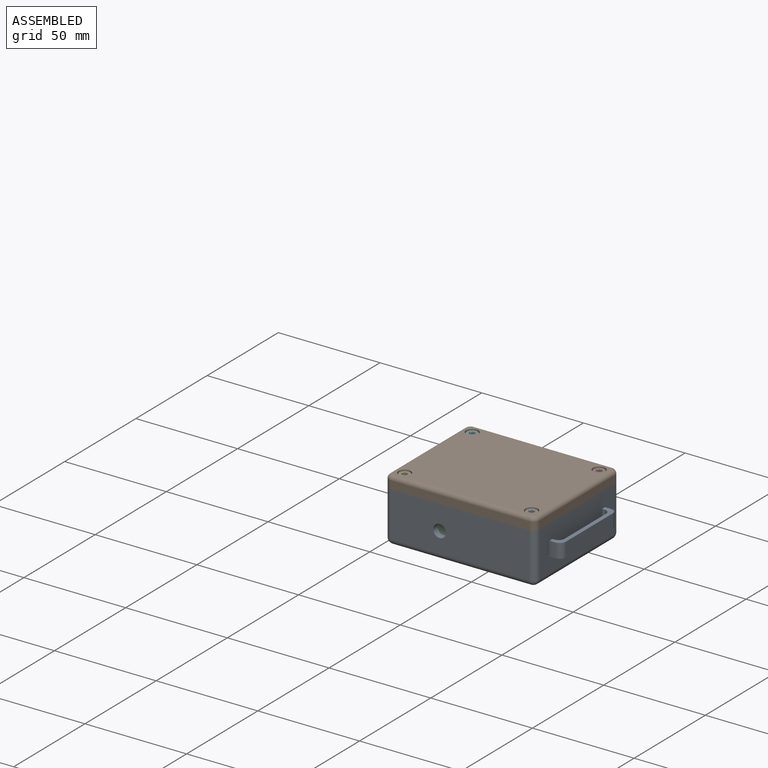
[diagram: assembled view]
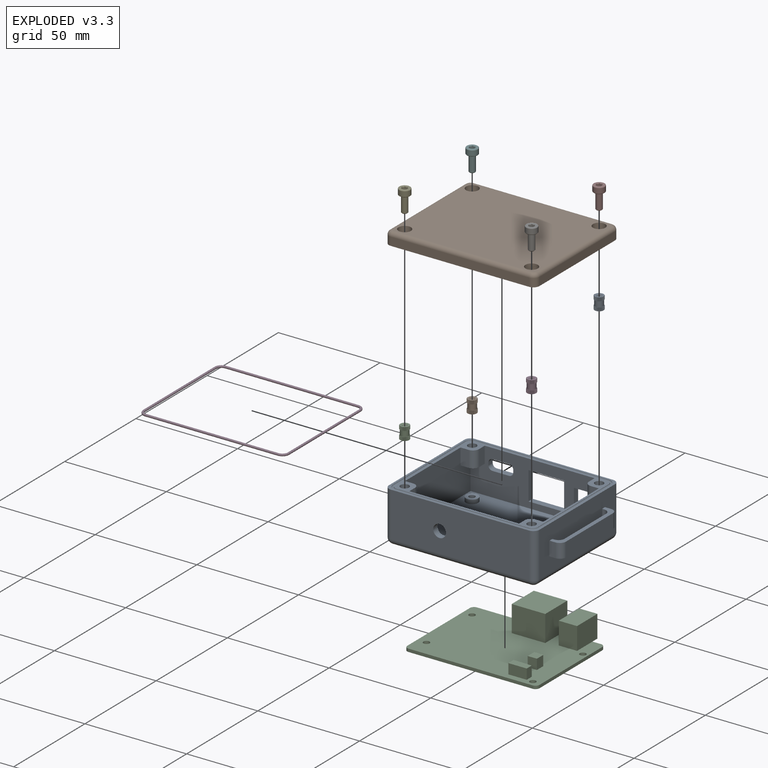
[diagram: exploded view]
GUIDED TOUR — FREECAD ASSEMBLY "netbridge_v2.1_v0.2"

This assembly has 12 components, labeled P0..P11 below (a component is one placed body or linked part; the same part can appear more than once), held together by 11 modeled joints. A joint is a constraint between two components; its type names the relative motion it leaves free:
  FASTENED — locks the two components together rigidly (no relative motion).
Axis/direction vectors are unit vectors and 'through' points are millimeter coordinates, both in the assembly's world frame.

MATES
  1. FASTENED [Fixed] "Joint": P10 <-> P8, direction (0.000, 0.000, 1.000) through (-28.00, 19.00, 2.00) mm
  2. FASTENED [Fixed] "Joint001": P11 <-> P8, direction (1.000, 0.000, 0.000) through (32.50, -28.00, 22.00) mm
  3. FASTENED [Fixed] "Joint002": P9 <-> P8, direction (0.000, 0.000, -1.000) through (31.20, 23.70, 22.00) mm
  4. FASTENED [Fixed] "Joint003": P0 <-> P8, direction (0.000, 0.000, 1.000) through (31.20, 23.70, 16.00) mm
  5. FASTENED [Fixed] "Joint004": P3 <-> P8, direction (0.000, 0.000, 1.000) through (31.20, -23.70, 16.00) mm
  6. FASTENED [Fixed] "Joint005": P2 <-> P8, direction (0.000, 0.000, 1.000) through (-31.20, -23.70, 16.00) mm
  7. FASTENED [Fixed] "Joint006": P1 <-> P8, direction (0.000, 0.000, 1.000) through (-31.20, 23.70, 16.00) mm
  8. FASTENED [Fixed] "Joint007": P4 <-> P9, direction (0.000, 0.000, 1.000) through (-31.20, -23.70, 24.60) mm
  9. FASTENED [Fixed] "Joint008": P5 <-> P9, direction (0.000, 0.000, 1.000) through (-31.20, 23.70, 24.60) mm
  10. FASTENED [Fixed] "Joint009": P9 <-> P6, direction (0.000, 0.000, 1.000) through (31.20, -23.70, 24.60) mm
  11. FASTENED [Fixed] "Joint010": P7 <-> P9, direction (0.000, 0.000, 1.000) through (31.20, 23.70, 24.60) mm

ASSEMBLY ORDER
  1. P8 — the base component [order heuristic]
  2. P0 — core [order heuristic]
  3. P1 — core [order heuristic]
  4. P2 — core [order heuristic]
  5. P3 — core [order heuristic]
  6. P10 [order verified]
  7. P11 — core [order heuristic]
  8. P6 — core [order heuristic]
  9. P9 — core [order heuristic]
  10. P7 [order verified]
  11. P5 [order verified]
  12. P4 [order verified]
Order-tag legend:
  [order verified] — this step's position reverses a verified removal order: the component was checked to insert without passing through the ones already placed.
  [order heuristic] — the first 8 components form the assembly's core: parts whose collision-free extraction could not be verified, listed in mate-graph order.

Of the 12 components, 4 carry a construction recipe — the FreeCAD feature program (sketches with constraints, then the solid features that consume them) that regenerates the part from scratch, quoted from this document or from the linked companion document it references; the rest are supplied as boundary geometry only. The tour below walks the components in assembly order: each is shown spotlighted twice — in the assembled view, then in the exploded view, where a leader line traces a displaced component back to its assembled socket (components that stay in place when exploded have no leader line; saturated green if recipe-attached, orange if geometry-only; every other component desaturated gray) — followed by its recipe or geometry summary and the mates that hold it.
NOTE — this tour is split across 2 documents so each fits a 32k-token context. This is document 1: the component sections continue in the remaining 1 document, each repeating the header above.
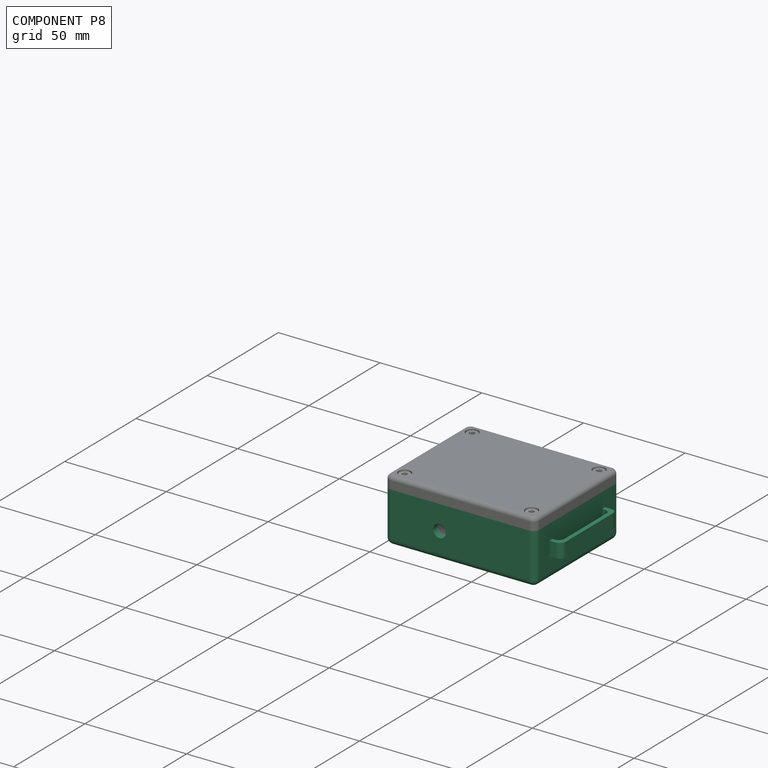
[diagram: component P8 — assembled]
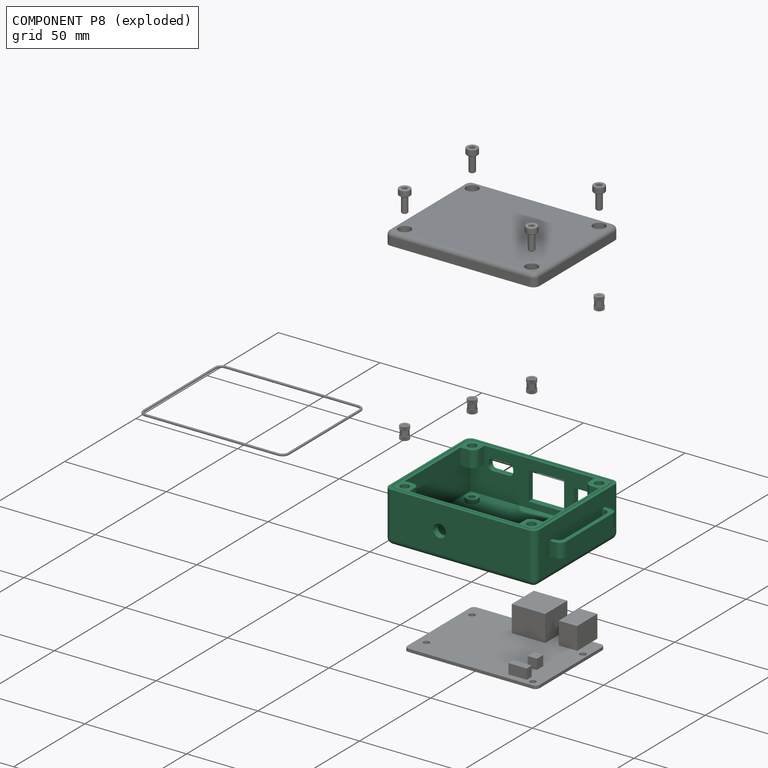
[diagram: component P8 — exploded]
COMPONENT P8 — recipe-attached ("case001", modeled in this document).
Held by: FASTENED mate "Joint" to P10; FASTENED mate "Joint001" to P11; FASTENED mate "Joint002" to P9; FASTENED mate "Joint003" to P0; FASTENED mate "Joint004" to P3; FASTENED mate "Joint005" to P2; FASTENED mate "Joint006" to P1.
Construction recipe (the document's own serialized feature program — sketch geometry with constraints, then the solid features built on it; lengths are millimeters unless a unit is written):

FEATURE [Sketcher::SketchObject] Sketch002  label="outside_dimentions"
  ArcFitTolerance = 1e-06
  AttachmentSupport = -> [XY_Plane003]
  ExternalTypes = [0]
  FullyConstrained = true
  MakeInternals = false
  MapMode = 5
  expr: Constraints[11] = VarSet.Base_y
  expr: Constraints[9] = VarSet.Base_x
  sketch-geometry (5):
    g0: LineSegment StartX=-34 StartY=26.5 StartZ=0 EndX=-34 EndY=-26.5 EndZ=0
    g1: LineSegment StartX=-34 StartY=-26.5 StartZ=0 EndX=34 EndY=-26.5 EndZ=0
    g2: LineSegment StartX=34 StartY=-26.5 StartZ=0 EndX=34 EndY=26.5 EndZ=0
    g3: LineSegment StartX=34 StartY=26.5 StartZ=0 EndX=-34 EndY=26.5 EndZ=0
    g4: GeomPoint [constr] X=0 Y=0 Z=0
  constraints (12):
    c: Coincident(g0,g1)
    c: Coincident(g1,g2)
    c: Coincident(g2,g3)
    c: Coincident(g3,g0)
    c: Vertical(g0)
    c: Vertical(g2)
    c: Horizontal(g1)
    c: Horizontal(g3)
    c: Symmetric(g2,g0,g4)
    c: Distance(g0,g2) = 68
    c: Coincident(g4,g-1)
    c: DistanceY(g0,g0) = 53
FEATURE [PartDesign::Pad] Pad004
  Direction = (0,0,1)
  Length = 22
  Length2 = 10
  Profile = -> Sketch002
  ReferenceAxis = -> Sketch002 [N_Axis]
  Refine = true
  Suppressed = false
  Type = 0
  expr: Length = VarSet.Base_z
FEATURE [PartDesign::Thickness] Thickness
  Base = -> Pad004 [Face6]
  BaseFeature = -> Pad004
  Intersection = true
  Join = 0
  Mode = 0
  Refine = true
  SupportTransform = false
  Suppressed = false
  Value = 3
  expr: Value = VarSet.Base_case_thickness
FEATURE [PartDesign::SubShapeBinder] Binder001
  BindCopyOnChange = 0
  BindMode = 0
  ClaimChildren = false
  Context = -> Part001 [Body001.Binder001.]
  Fuse = false
  MakeFace = true
  OffsetFill = false
  OffsetIntersection = false
  OffsetJoinType = 0
  OffsetOpenResult = false
  PartialLoad = false
  Refine = true
  Relative = false
  Support = -> [netbridge_v2_1[Body.Pad003.Edge89,Body.Pad003.Edge70,Body.Pad003.Edge92,Body.Pad003.Edge64,Body.Pad003.Edge61,Body.Pad003.Edge91,Body.Pad003.Edge55,Body.Pad003.Edge90]]
  _Version = 2
FEATURE [PartDesign::SubShapeBinder] Binder
  BindCopyOnChange = 0
  BindMode = 0
  ClaimChildren = false
  Context = -> Part001 [Body001.Binder.]
  Fuse = false
  MakeFace = true
  OffsetFill = false
  OffsetIntersection = false
  OffsetJoinType = 0
  OffsetOpenResult = false
  PartialLoad = false
  Placement = pos=(0,2,0) rot=(0,0,1;0rad)
  Refine = true
  Relative = true
  Support = -> [Part[Body.Pad003.Face4]]
  _Version = 2
FEATURE [Sketcher::SketchObject] Sketch003
  ArcFitTolerance = 1e-06
  AttachmentSupport = -> [XY_Plane003]
  ExternalGeometry = -> [Binder]
  ExternalTypes = [0,0,0,0,0]
  FullyConstrained = true
  MakeInternals = false
  MapMode = 5
  sketch-geometry (8):
    g0: Circle CenterX=-28 CenterY=19 CenterZ=0 NormalX=0 NormalY=0 NormalZ=1 AngleXU=0 Radius=3
    g1: Circle CenterX=30 CenterY=14 CenterZ=0 NormalX=0 NormalY=0 NormalZ=1 AngleXU=0 Radius=3
    g2: Circle CenterX=28.5 CenterY=-19 CenterZ=0 NormalX=0 NormalY=0 NormalZ=1 AngleXU=0 Radius=3
    g3: Circle CenterX=-28 CenterY=-13 CenterZ=0 NormalX=0 NormalY=0 NormalZ=1 AngleXU=0 Radius=3
    g4: Circle CenterX=-28 CenterY=19 CenterZ=0 NormalX=0 NormalY=0 NormalZ=1 AngleXU=0 Radius=1.5
    g5: Circle CenterX=30 CenterY=14 CenterZ=0 NormalX=0 NormalY=0 NormalZ=1 AngleXU=0 Radius=1.5
    g6: Circle CenterX=28.5 CenterY=-19 CenterZ=0 NormalX=0 NormalY=0 NormalZ=1 AngleXU=0 Radius=1.5
    g7: Circle CenterX=-28 CenterY=-13 CenterZ=0 NormalX=0 NormalY=0 NormalZ=1 AngleXU=0 Radius=1.5
  constraints (16):
    c: Equal(g3,g2)
    c: Equal(g2,g1)
    c: Equal(g1,g0)
    c: Diameter(g0) = 6
    c: Coincident(g0,g-3)
    c: Coincident(g1,g-4)
    c: Coincident(g2,g-5)
    c: Coincident(g-6,g3)
    c: Coincident(g4,g0)
    c: Coincident(g5,g1)
    c: Coincident(g6,g2)
    c: Coincident(g7,g3)
    c: Equal(g7,g6)
    c: Equal(g6,g5)
    c: Equal(g5,g4)
    c: Diameter(g4) = 3
FEATURE [PartDesign::Pad] Pad005
  BaseFeature = -> Thickness
  Direction = (0,0,1)
  Length = 2
  Length2 = 10
  Profile = -> Sketch003
  ReferenceAxis = -> Sketch003 [N_Axis]
  Refine = true
  Suppressed = false
  Type = 0
FEATURE [Sketcher::SketchObject] Sketch004  label="power_ethernet"
  ArcFitTolerance = 1e-06
  AttachmentSupport = -> [Pad005]
  ExternalGeometry = -> [Binder001]
  ExternalTypes = [0]
  FullyConstrained = true
  MakeInternals = false
  MapMode = 5
  Placement = pos=(0,29.5,0) rot=(0,0.707107,0.707107;3.14159rad)
  sketch-geometry (24):
    g0: LineSegment [constr] StartX=-11.5 StartY=3.5 StartZ=0 EndX=5 EndY=16.4 EndZ=0
    g1: LineSegment [constr] StartX=-26.3 StartY=3.5 StartZ=0 EndX=-17.3 EndY=14.5 EndZ=0
    g2: LineSegment StartX=-16.8 StartY=15 StartZ=0 EndX=-16.8 EndY=3 EndZ=0
    g3: LineSegment StartX=-16.8 StartY=3 StartZ=0 EndX=-26.8 EndY=3 EndZ=0
    g4: LineSegment StartX=-26.8 StartY=3 StartZ=0 EndX=-26.8 EndY=15 EndZ=0
    g5: LineSegment StartX=-26.8 StartY=15 StartZ=0 EndX=-16.8 EndY=15 EndZ=0
    g6: GeomPoint [constr] X=-21.8 Y=9 Z=0
    g7: LineSegment StartX=-12 StartY=16.9 StartZ=0 EndX=-12 EndY=3 EndZ=0
    g8: LineSegment StartX=-12 StartY=3 StartZ=0 EndX=5.5 EndY=3 EndZ=0
    g9: LineSegment StartX=5.5 StartY=3 StartZ=0 EndX=5.5 EndY=16.9 EndZ=0
    g10: LineSegment StartX=5.5 StartY=16.9 StartZ=0 EndX=-12 EndY=16.9 EndZ=0
    g11: GeomPoint [constr] X=-3.25 Y=9.95 Z=0
    g12: LineSegment [constr] StartX=-26.3 StartY=14.5 StartZ=0 EndX=-17.3 EndY=3.5 EndZ=0
    g13: LineSegment [constr] StartX=-11.5 StartY=16.4 StartZ=0 EndX=5 EndY=3.5 EndZ=0
    g14: LineSegment StartX=13 StartY=15 StartZ=0 EndX=13 EndY=13.8 EndZ=0
    g15: LineSegment StartX=15 StartY=11.8 StartZ=0 EndX=23.2 EndY=11.8 EndZ=0
    g16: LineSegment StartX=25.2 StartY=13.8 StartZ=0 EndX=25.2 EndY=15 EndZ=0
    g17: LineSegment StartX=23.2 StartY=17 StartZ=0 EndX=15 EndY=17 EndZ=0
    g18: ArcOfCircle CenterX=15 CenterY=15 CenterZ=0 NormalX=0 NormalY=0 NormalZ=1 AngleXU=0 Radius=2 StartAngle=1.5708 EndAngle=3.14159
    g19: ArcOfCircle CenterX=15 CenterY=13.8 CenterZ=0 NormalX=0 NormalY=0 NormalZ=1 AngleXU=0 Radius=2 StartAngle=3.14159 EndAngle=4.71239
    g20: ArcOfCircle CenterX=23.2 CenterY=13.8 CenterZ=0 NormalX=0 NormalY=0 NormalZ=1 AngleXU=0 Radius=2 StartAngle=4.71239 EndAngle=6.28319
    g21: ArcOfCircle CenterX=23.2 CenterY=15 CenterZ=0 NormalX=0 NormalY=0 NormalZ=1 AngleXU=0 Radius=2 StartAngle=0 EndAngle=1.5708
    g22: GeomPoint [constr] X=13 Y=17 Z=0
    g23: GeomPoint [constr] X=25.2 Y=11.8 Z=0
  constraints (57):
    c: Coincident(g0,g-5)
    c: Coincident(g0,g-6)
    c: Coincident(g2,g3)
    c: Coincident(g3,g4)
    c: Coincident(g4,g5)
    c: Coincident(g5,g2)
    c: Vertical(g2)
    c: Vertical(g4)
    c: Horizontal(g3)
    c: Horizontal(g5)
    c: Symmetric(g4,g2,g6)
    c: Coincident(g7,g8)
    c: Coincident(g8,g9)
    c: Coincident(g9,g10)
    c: Coincident(g10,g7)
    c: Vertical(g7)
    c: Vertical(g9)
    c: Horizontal(g8)
    c: Horizontal(g10)
    c: Symmetric(g9,g7,g11)
    c: Symmetric(g0,g0,g11)
    c: PointOnObject(g6,g1)
    c: Coincident(g-3,g1)
    c: Coincident(g1,g-4)
    c: Coincident(g12,g-4)
    c: Coincident(g12,g-7)
    c: PointOnObject(g6,g12)
    c: Coincident(g13,g-6)
    c: Coincident(g13,g-8)
    c: DistanceX(g4,g12) = 0.5
    c: DistanceY(g12,g4) = 0.5
    c: DistanceX(g7,g13) = 0.5
    c: DistanceY(g13,g7) = 0.5
    c: Tangent(g14,g18) = -1.5708
    c: Tangent(g14,g19) = -1.5708
    c: Tangent(g15,g19) = -1.5708
    c: Tangent(g15,g20) = -1.5708
    c: Tangent(g16,g20) = -1.5708
    c: Tangent(g16,g21) = -1.5708
    c: Tangent(g17,g21) = -1.5708
    c: Tangent(g17,g18) = -1.5708
    c: Vertical(g14)
    c: Vertical(g16)
    c: Horizontal(g15)
    c: Horizontal(g17)
    c: Equal(g18,g19)
    c: Equal(g19,g20)
    c: Equal(g20,g21)
    c: PointOnObject(g22,g14)
    c: PointOnObject(g22,g17)
    c: PointOnObject(g23,g15)
    c: PointOnObject(g23,g16)
    c: Distance(g14,g16) = 12.2
    c: Distance(g15,g17) = 5.2
    c: Radius(g20) = 2
    c: DistanceX(g-1,g19) = 15
    c: DistanceY(g-1,g18) = 15
FEATURE [PartDesign::Pocket] Pocket
  BaseFeature = -> Pad005
  Direction = (0,-1,2e-16)
  Length = 3
  Length2 = 5
  Profile = -> Sketch004
  ReferenceAxis = -> Sketch004 [N_Axis]
  Refine = true
  Suppressed = false
  Type = 0
  expr: Length = 3 mm
FEATURE [Part::DatumPlane] Plane
  AttachmentOffset = pos=(0,0,22) rot=(0,0,1;0rad)
  AttachmentSupport = -> [Origin003]
  MapMode = 5
  Placement = pos=(0,0,22) rot=(0,0,1;0rad)
  expr: .AttachmentOffset.Base.z = VarSet.Base_z
FEATURE [Sketcher::SketchObject] Sketch006
  ArcFitTolerance = 1e-06
  AttachmentSupport = -> [Plane]
  ExternalTypes = [0]
  FullyConstrained = true
  MakeInternals = false
  MapMode = 5
  Placement = pos=(0,0,22) rot=(0,0,1;0rad)
  expr: Constraints[19] = VarSet.Base_x + VarSet.Base_case_thickness
  expr: Constraints[20] = VarSet.Base_y + VarSet.Base_case_thickness
  expr: Constraints[21] = VarSet.Base_case_thickness
  sketch-geometry (10):
    g0: LineSegment StartX=-35.5 StartY=25 StartZ=0 EndX=-35.5 EndY=-25 EndZ=0
    g1: LineSegment StartX=-32.5 StartY=-28 StartZ=0 EndX=32.5 EndY=-28 EndZ=0
    g2: LineSegment StartX=35.5 StartY=-25 StartZ=0 EndX=35.5 EndY=25 EndZ=0
    g3: LineSegment StartX=32.5 StartY=28 StartZ=0 EndX=-32.5 EndY=28 EndZ=0
    g4: ArcOfCircle CenterX=-32.5 CenterY=25 CenterZ=0 NormalX=0 NormalY=0 NormalZ=1 AngleXU=0 Radius=3 StartAngle=1.5708 EndAngle=3.14159
    g5: ArcOfCircle CenterX=-32.5 CenterY=-25 CenterZ=0 NormalX=0 NormalY=0 NormalZ=1 AngleXU=0 Radius=3 StartAngle=3.14159 EndAngle=4.71239
    g6: ArcOfCircle CenterX=32.5 CenterY=-25 CenterZ=0 NormalX=0 NormalY=0 NormalZ=1 AngleXU=0 Radius=3 StartAngle=4.71239 EndAngle=6.28319
    g7: ArcOfCircle CenterX=32.5 CenterY=25 CenterZ=0 NormalX=0 NormalY=0 NormalZ=1 AngleXU=0 Radius=3 StartAngle=0 EndAngle=1.5708
    g8: GeomPoint [constr] X=-35.5 Y=28 Z=0
    g9: GeomPoint [constr] X=35.5 Y=-28 Z=0
  constraints (23):
    c: Tangent(g0,g4) = -1.5708
    c: Tangent(g0,g5) = -1.5708
    c: Tangent(g1,g5) = -1.5708
    c: Tangent(g1,g6) = -1.5708
    c: Tangent(g2,g6) = -1.5708
    c: Tangent(g2,g7) = -1.5708
    c: Tangent(g3,g7) = -1.5708
    c: Tangent(g3,g4) = -1.5708
    c: Vertical(g0)
    c: Vertical(g2)
    c: Horizontal(g1)
    c: Horizontal(g3)
    c: Equal(g4,g5)
    c: Equal(g5,g6)
    c: Equal(g6,g7)
    c: PointOnObject(g8,g0)
    c: PointOnObject(g8,g3)
    c: PointOnObject(g9,g1)
    c: PointOnObject(g9,g2)
    c: Distance(g0,g2) = 71
    c: Distance(g1,g3) = 56
    c: Radius(g4) = 3
    c: Symmetric(g4,g6,g-1)
FEATURE [Sketcher::SketchObject] Sketch007
  ArcFitTolerance = 1e-06
  AttachmentSupport = -> [XZ_Plane003]
  ExternalTypes = [0]
  FullyConstrained = true
  MakeInternals = false
  MapMode = 5
  Placement = pos=(0,0,0) rot=(1,0,0;1.5708rad)
  expr: Constraints[0] = (VarSet.Base_x + VarSet.Base_case_thickness) / 2
  expr: Constraints[1] = VarSet.Base_o_ring_diameter
  expr: Constraints[2] = VarSet.Base_z
  sketch-geometry (1):
    g0: Circle CenterX=-35.5 CenterY=22 CenterZ=0 NormalX=0 NormalY=0 NormalZ=1 AngleXU=0 Radius=0.5
  constraints (3):
    c: DistanceX(g0,g-1) = 35.5
    c: Diameter(g0) = 1
    c: DistanceY(g-1,g0) = 22
FEATURE [PartDesign::SubtractivePipe] SubtractivePipe  label="oring_reses"
  AuxilleryCurvelinear = true
  AuxillerySpineTangent = false
  BaseFeature = -> Pocket
  Binormal = (0,0,0)
  Mode = 0
  Profile = -> Sketch007
  Refine = true
  Spine = -> Sketch006
  SpineTangent = false
  Suppressed = false
  Transformation = 0
  Transition = 0
FEATURE [Sketcher::SketchObject] Sketch010
  ArcFitTolerance = 1e-06
  AttachmentSupport = -> [Plane]
  ExternalTypes = [0]
  FullyConstrained = true
  MakeInternals = false
  MapMode = 5
  Placement = pos=(0,0,22) rot=(0,0,1;0rad)
  expr: Constraints[10] = VarSet.Base_y
  expr: Constraints[70] = VarSet.Base_screw_pad
  expr: Constraints[71] = VarSet.Base_screw_pad
  expr: Constraints[9] = VarSet.Base_x
  sketch-geometry (29):
    g0: LineSegment [constr] StartX=-34 StartY=-26.5 StartZ=0 EndX=34 EndY=-26.5 EndZ=0
    g1: LineSegment [constr] StartX=34 StartY=-26.5 StartZ=0 EndX=34 EndY=26.5 EndZ=0
    g2: LineSegment [constr] StartX=34 StartY=26.5 StartZ=0 EndX=-34 EndY=26.5 EndZ=0
    g3: LineSegment [constr] StartX=-34 StartY=26.5 StartZ=0 EndX=-34 EndY=-26.5 EndZ=0
    g4: GeomPoint [constr] X=0 Y=0 Z=0
    g5: LineSegment StartX=-34 StartY=26.5 StartZ=0 EndX=-34 EndY=19.5 EndZ=0
    g6: LineSegment StartX=-27 StartY=26.5 StartZ=0 EndX=-34 EndY=26.5 EndZ=0
    g7: LineSegment StartX=34 StartY=26.5 StartZ=0 EndX=27 EndY=26.5 EndZ=0
    g8: LineSegment StartX=27 StartY=26.5 StartZ=0 EndX=27 EndY=22.5 EndZ=0
    g9: LineSegment StartX=30 StartY=19.5 StartZ=0 EndX=34 EndY=19.5 EndZ=0
    g10: LineSegment StartX=34 StartY=19.5 StartZ=0 EndX=34 EndY=26.5 EndZ=0
    g11: LineSegment StartX=34 StartY=-26.5 StartZ=0 EndX=34 EndY=-19.5 EndZ=0
    g12: LineSegment StartX=34 StartY=-19.5 StartZ=0 EndX=30 EndY=-19.5 EndZ=0
    g13: LineSegment StartX=27 StartY=-22.5 StartZ=0 EndX=27 EndY=-26.5 EndZ=0
    g14: LineSegment StartX=27 StartY=-26.5 StartZ=0 EndX=34 EndY=-26.5 EndZ=0
    g15: LineSegment StartX=-34 StartY=-26.5 StartZ=0 EndX=-27 EndY=-26.5 EndZ=0
    g16: LineSegment StartX=-27 StartY=-26.5 StartZ=0 EndX=-27 EndY=-22.5 EndZ=0
    g17: LineSegment StartX=-30 StartY=-19.5 StartZ=0 EndX=-34 EndY=-19.5 EndZ=0
    g18: LineSegment StartX=-34 StartY=-19.5 StartZ=0 EndX=-34 EndY=-26.5 EndZ=0
    g19: LineSegment StartX=-34 StartY=19.5 StartZ=0 EndX=-30 EndY=19.5 EndZ=0
    g20: LineSegment StartX=-27 StartY=26.5 StartZ=0 EndX=-27 EndY=22.5 EndZ=0
    g21: ArcOfCircle CenterX=-30 CenterY=22.5 CenterZ=0 NormalX=0 NormalY=0 NormalZ=1 AngleXU=0 Radius=3 StartAngle=4.71239 EndAngle=6.28319
    g22: GeomPoint [constr] X=-27 Y=19.5 Z=0
    g23: ArcOfCircle CenterX=30 CenterY=22.5 CenterZ=0 NormalX=0 NormalY=0 NormalZ=1 AngleXU=0 Radius=3 StartAngle=3.14159 EndAngle=4.71239
    g24: GeomPoint [constr] X=27 Y=19.5 Z=0
    g25: ArcOfCircle CenterX=30 CenterY=-22.5 CenterZ=0 NormalX=0 NormalY=0 NormalZ=1 AngleXU=0 Radius=3 StartAngle=1.5708 EndAngle=3.14159
    g26: GeomPoint [constr] X=27 Y=-19.5 Z=0
    g27: ArcOfCircle CenterX=-30 CenterY=-22.5 CenterZ=0 NormalX=0 NormalY=0 NormalZ=1 AngleXU=0 Radius=3 StartAngle=4e-16 EndAngle=1.5708
    g28: GeomPoint [constr] X=-27 Y=-19.5 Z=0
  constraints (72):
    c: Coincident(g0,g1)
    c: Coincident(g1,g2)
    c: Coincident(g2,g3)
    c: Coincident(g3,g0)
    c: Horizontal(g0)
    c: Horizontal(g2)
    c: Vertical(g1)
    c: Vertical(g3)
    c: Symmetric(g2,g0,g4)
    c: Distance(g1,g3) = 68
    c: Distance(g0,g2) = 53
    c: Coincident(g4,g-1)
    c: Coincident(g6,g5)
    c: Vertical(g5)
    c: Horizontal(g6)
    c: Coincident(g7,g8)
    c: Coincident(g9,g10)
    c: Coincident(g10,g7)
    c: Horizontal(g7)
    c: Horizontal(g9)
    c: Vertical(g8)
    c: Vertical(g10)
    c: Coincident(g7,g1)
    c: Coincident(g11,g12)
    c: Coincident(g13,g14)
    c: Coincident(g14,g11)
    c: Vertical(g11)
    c: Vertical(g13)
    c: Horizontal(g12)
    c: Horizontal(g14)
    c: Coincident(g11,g0)
    c: Coincident(g15,g16)
    c: Coincident(g17,g18)
    c: Coincident(g18,g15)
    c: Horizontal(g15)
    c: Horizontal(g17)
    c: Vertical(g16)
    c: Vertical(g18)
    c: Coincident(g15,g0)
    c: Coincident(g19,g5)
    c: Horizontal(g19)
    c: Coincident(g20,g6)
    c: Parallel(g20,g-2)
    c: Coincident(g5,g2)
    c: PointOnObject(g22,g19)
    c: PointOnObject(g22,g20)
    c: Tangent(g19,g21) = -1.5708
    c: Tangent(g20,g21) = 1.5708
    c: PointOnObject(g24,g9)
    c: PointOnObject(g24,g8)
    c: Tangent(g9,g23) = -1.5708
    c: Tangent(g8,g23) = -1.5708
    c: PointOnObject(g26,g12)
    c: PointOnObject(g26,g13)
    c: Tangent(g12,g25) = -1.5708
    c: Tangent(g13,g25) = -1.5708
    c: PointOnObject(g28,g16)
    c: PointOnObject(g28,g17)
    c: Tangent(g16,g27) = -1.5708
    c: Tangent(g17,g27) = -1.5708
    c: Equal(g27,g25)
    c: Equal(g25,g23)
    c: Equal(g23,g21)
    c: Radius(g21) = 3
    c: Equal(g19,g9)
    c: Equal(g9,g12)
    c: Equal(g12,g17)
    c: Equal(g20,g8)
    c: Equal(g8,g13)
    c: Equal(g13,g16)
    c: DistanceY(g22,g6) = 7
    c: Distance(g22,g3) = 7
FEATURE [PartDesign::Pad] Pad007
  BaseFeature = -> SubtractivePipe
  Direction = (0,0,1)
  Length = 8
  Length2 = 10
  Profile = -> Sketch010
  ReferenceAxis = -> Sketch010 [N_Axis]
  Refine = true
  Reversed = true
  Suppressed = false
  Type = 0
FEATURE [Sketcher::SketchObject] Sketch011  label="insert"
  ArcFitTolerance = 1e-06
  AttachmentSupport = -> [Plane]
  ExternalTypes = [0]
  FullyConstrained = true
  MakeInternals = false
  MapMode = 5
  Placement = pos=(0,0,22) rot=(0,0,1;0rad)
  expr: Constraints[10] = VarSet.Base_y - VarSet.Base_screw_pad * 0.8
  expr: Constraints[9] = VarSet.Base_x - VarSet.Base_screw_pad * 0.8
  sketch-geometry (9):
    g0: LineSegment [constr] StartX=-31.2 StartY=-23.7 StartZ=0 EndX=31.2 EndY=-23.7 EndZ=0
    g1: LineSegment [constr] StartX=31.2 StartY=-23.7 StartZ=0 EndX=31.2 EndY=23.7 EndZ=0
    g2: LineSegment [constr] StartX=31.2 StartY=23.7 StartZ=0 EndX=-31.2 EndY=23.7 EndZ=0
    g3: LineSegment [constr] StartX=-31.2 StartY=23.7 StartZ=0 EndX=-31.2 EndY=-23.7 EndZ=0
    g4: GeomPoint [constr] X=0 Y=0 Z=0
    g5: Circle CenterX=-31.2 CenterY=23.7 CenterZ=0 NormalX=0 NormalY=0 NormalZ=1 AngleXU=0 Radius=2.1
    g6: Circle CenterX=31.2 CenterY=23.7 CenterZ=0 NormalX=0 NormalY=0 NormalZ=1 AngleXU=0 Radius=2.1
    g7: Circle CenterX=31.2 CenterY=-23.7 CenterZ=0 NormalX=0 NormalY=0 NormalZ=1 AngleXU=0 Radius=2.1
    g8: Circle CenterX=-31.2 CenterY=-23.7 CenterZ=0 NormalX=0 NormalY=0 NormalZ=1 AngleXU=0 Radius=2.1
  constraints (20):
    c: Coincident(g0,g1)
    c: Coincident(g1,g2)
    c: Coincident(g2,g3)
    c: Coincident(g3,g0)
    c: Horizontal(g0)
    c: Horizontal(g2)
    c: Vertical(g1)
    c: Vertical(g3)
    c: Symmetric(g2,g0,g4)
    c: Distance(g1,g3) = 62.4
    c: Distance(g0,g2) = 47.4
    c: Coincident(g4,g-1)
    c: Coincident(g5,g2)
    c: Coincident(g6,g1)
    c: Coincident(g7,g0)
    c: Coincident(g8,g0)
    c: Equal(g8,g7)
    c: Equal(g7,g6)
    c: Equal(g6,g5)
    c: Diameter(g5) = 4.2
FEATURE [PartDesign::Pocket] Pocket001
  BaseFeature = -> Pad007
  Direction = (0,0,-1)
  Length = 11
  Length2 = 5
  Profile = -> Sketch011
  ReferenceAxis = -> Sketch011 [N_Axis]
  Refine = true
  Suppressed = false
  Type = 0
FEATURE [Sketcher::SketchObject] Sketch017
  ArcFitTolerance = 1e-06
  AttachmentOffset = pos=(0,0,11) rot=(0,0,1;0rad)
  AttachmentSupport = -> [XY_Plane003]
  ExternalTypes = [0]
  FullyConstrained = true
  MakeInternals = false
  MapMode = 5
  Placement = pos=(0,0,11) rot=(0,0,1;0rad)
  expr: .AttachmentOffset.Base.z = VarSet.Base_z / 2
  expr: Constraints[37] = VarSet.Base_x / 2 + VarSet.Base_case_thickness
  sketch-geometry (16):
    g0: LineSegment StartX=37 StartY=-19.5 StartZ=0 EndX=40 EndY=-19.5 EndZ=0
    g1: LineSegment StartX=43 StartY=-16.5 StartZ=0 EndX=43 EndY=16.5 EndZ=0
    g2: LineSegment StartX=40 StartY=19.5 StartZ=0 EndX=37 EndY=19.5 EndZ=0
    g3: ArcOfCircle CenterX=40 CenterY=-16.5 CenterZ=0 NormalX=0 NormalY=0 NormalZ=1 AngleXU=0 Radius=3 StartAngle=4.71239 EndAngle=6.28319
    g4: ArcOfCircle CenterX=40 CenterY=16.5 CenterZ=0 NormalX=0 NormalY=0 NormalZ=1 AngleXU=0 Radius=3 StartAngle=0 EndAngle=1.5708
    g5: GeomPoint [constr] X=43 Y=-19.5 Z=0
    g6: LineSegment [constr] StartX=37 StartY=19.5 StartZ=0 EndX=37 EndY=-19.5 EndZ=0
    g7: LineSegment StartX=37 StartY=-17.5 StartZ=0 EndX=38 EndY=-17.5 EndZ=0
    g8: LineSegment StartX=41 StartY=-14.5 StartZ=0 EndX=41 EndY=14.5 EndZ=0
    g9: LineSegment StartX=38 StartY=17.5 StartZ=0 EndX=37 EndY=17.5 EndZ=0
    g10: ArcOfCircle CenterX=38 CenterY=-14.5 CenterZ=0 NormalX=0 NormalY=0 NormalZ=1 AngleXU=0 Radius=3 StartAngle=4.71239 EndAngle=6.28319
    g11: ArcOfCircle CenterX=38 CenterY=14.5 CenterZ=0 NormalX=0 NormalY=0 NormalZ=1 AngleXU=0 Radius=3 StartAngle=2e-16 EndAngle=1.5708
    g12: GeomPoint [constr] X=41 Y=-17.5 Z=0
    g13: LineSegment [constr] StartX=37 StartY=17.5 StartZ=0 EndX=37 EndY=-17.5 EndZ=0
    g14: LineSegment StartX=37 StartY=17.5 StartZ=0 EndX=37 EndY=19.5 EndZ=0
    g15: LineSegment StartX=37 StartY=-17.5 StartZ=0 EndX=37 EndY=-19.5 EndZ=0
  constraints (39):
    c: Tangent(g0,g3) = -1.5708
    c: Tangent(g1,g3) = -1.5708
    c: Tangent(g1,g4) = -1.5708
    c: Tangent(g2,g4) = -1.5708
    c: Equal(g3,g4)
    c: PointOnObject(g5,g0)
    c: PointOnObject(g5,g1)
    c: Radius(g4) = 3
    c: Coincident(g6,g2)
    c: Coincident(g6,g0)
    c: Tangent(g7,g10) = -1.5708
    c: Tangent(g8,g10) = -1.5708
    c: Tangent(g8,g11) = -1.5708
    c: Tangent(g9,g11) = -1.5708
    c: Equal(g10,g11)
    c: PointOnObject(g12,g7)
    c: PointOnObject(g12,g8)
    c: Radius(g11) = 3
    c: Coincident(g13,g9)
    c: Coincident(g13,g7)
    c: Parallel(g2,g-1)
    c: Parallel(g0,g-1)
    c: Perpendicular(g1,g-1)
    c: Perpendicular(g6,g-1)
    c: Coincident(g14,g9)
    c: Coincident(g14,g2)
    c: Coincident(g15,g7)
    c: Coincident(g15,g0)
    c: PointOnObject(g7,g6)
    c: Symmetric(g7,g9,g-1)
    c: Parallel(g9,g-1)
    c: Perpendicular(g-1,g8)
    c: Equal(g7,g9)
    c: Equal(g14,g15)
    c: DistanceY(g9,g2) = 2
    c: Distance(g8,g1) = 2
    c: DistanceY(g7,g9) = 35
    c: DistanceX(g-1,g9) = 37
    c: DistanceX(g9,g4) = 3
FEATURE [PartDesign::Pad] Pad009
  BaseFeature = -> Pocket001
  Direction = (0,0,1)
  Length = 7
  Length2 = 10
  Midplane = true
  Profile = -> Sketch017
  ReferenceAxis = -> Sketch017 [N_Axis]
  Refine = true
  Suppressed = false
  Type = 0
FEATURE [Sketcher::SketchObject] Sketch018  label="antenna"
  ArcFitTolerance = 1e-06
  AttachmentOffset = pos=(0,0,29.5) rot=(0,0,1;0rad)
  AttachmentSupport = -> [XZ_Plane003]
  ExternalTypes = [0]
  FullyConstrained = true
  MakeInternals = false
  MapMode = 5
  Placement = pos=(0,-29.5,6.6e-15) rot=(1,0,0;1.5708rad)
  expr: .AttachmentOffset.Base.z = VarSet.Base_y / 2 + VarSet.Base_case_thickness
  sketch-geometry (1):
    g0: Circle CenterX=-10 CenterY=10 CenterZ=0 NormalX=0 NormalY=0 NormalZ=1 AngleXU=0 Radius=3.1
  constraints (3):
    c: Diameter(g0) = 6.2
    c: DistanceX(g0,g-1) = 10
    c: DistanceY(g-1,g0) = 10
FEATURE [PartDesign::Pocket] Pocket002
  BaseFeature = -> Pad009
  Direction = (0,1,-2e-16)
  Length = 3
  Length2 = 5
  Profile = -> Sketch018
  ReferenceAxis = -> Sketch018 [N_Axis]
  Refine = true
  Suppressed = false
  Type = 0
  expr: Length = VarSet.Base_case_thickness
FEATURE [PartDesign::Body] Body001  label="main_body"
  AllowCompound = false
  Group = -> [Sketch002,Pad004,Thickness,Sketch003,Pad005,Sketch004,Binder001,Pocket,Binder,Plane,Sketch006,Sketch007,SubtractivePipe,Sketch010,Pad007,Sketch011,Pocket001,Sketch017,Pad009,Sketch018,Pocket002]
  Origin = -> Origin003
  Tip = -> Pocket002
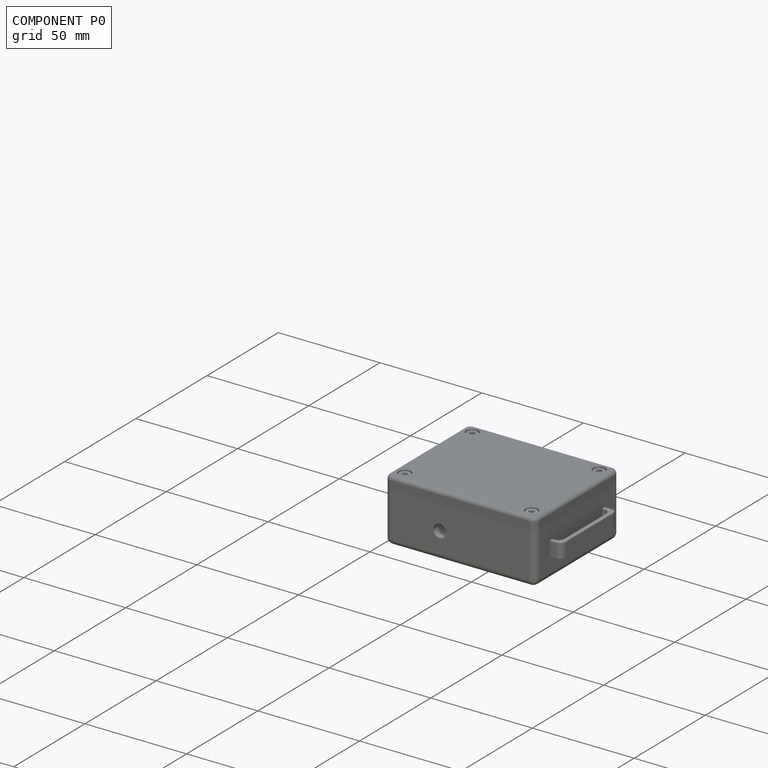
[diagram: component P0 — assembled]
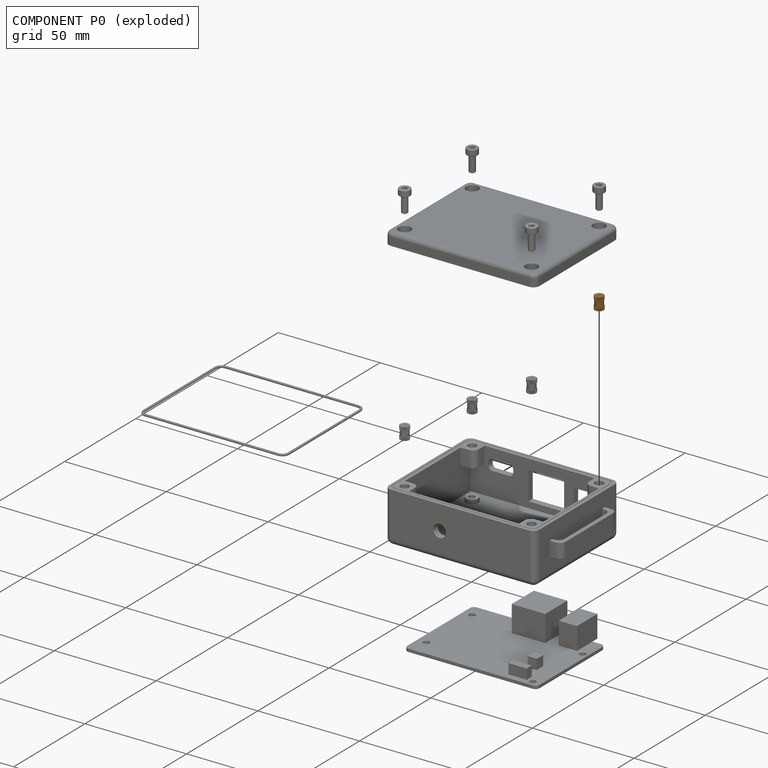
[diagram: component P0 — exploded]
COMPONENT P0 — geometry summary ("M3 insert nut002"; no construction recipe available for this part):
  bounding box: 6.2 x 4.5 x 4.5 mm
  tessellated surface: 14,620 triangles
  volume: 46 mm^3 (37% of its bounding box)
Held by: FASTENED mate "Joint003" to P8.
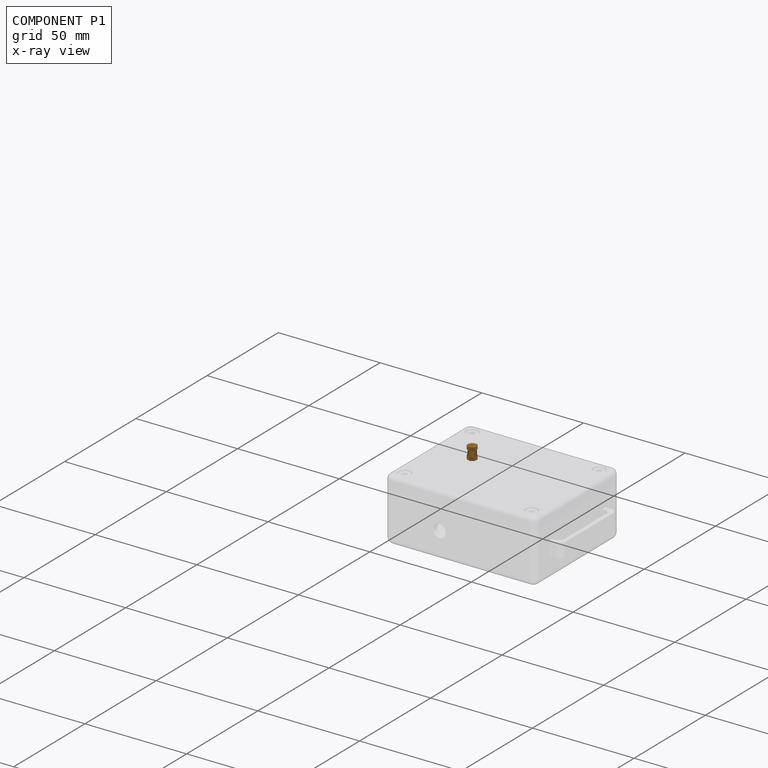
[diagram: component P1 — x-ray view]
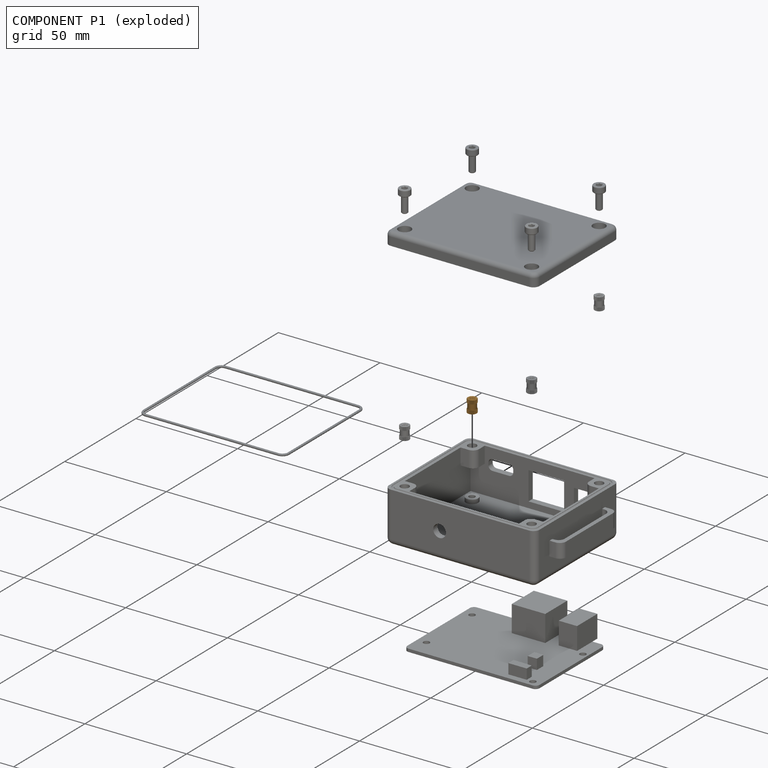
[diagram: component P1 — exploded]
COMPONENT P1 — geometry summary ("M3 insert nut003"; no construction recipe available for this part):
  bounding box: 6.2 x 4.5 x 4.5 mm
  tessellated surface: 14,620 triangles
  volume: 46 mm^3 (37% of its bounding box)
Held by: FASTENED mate "Joint006" to P8.
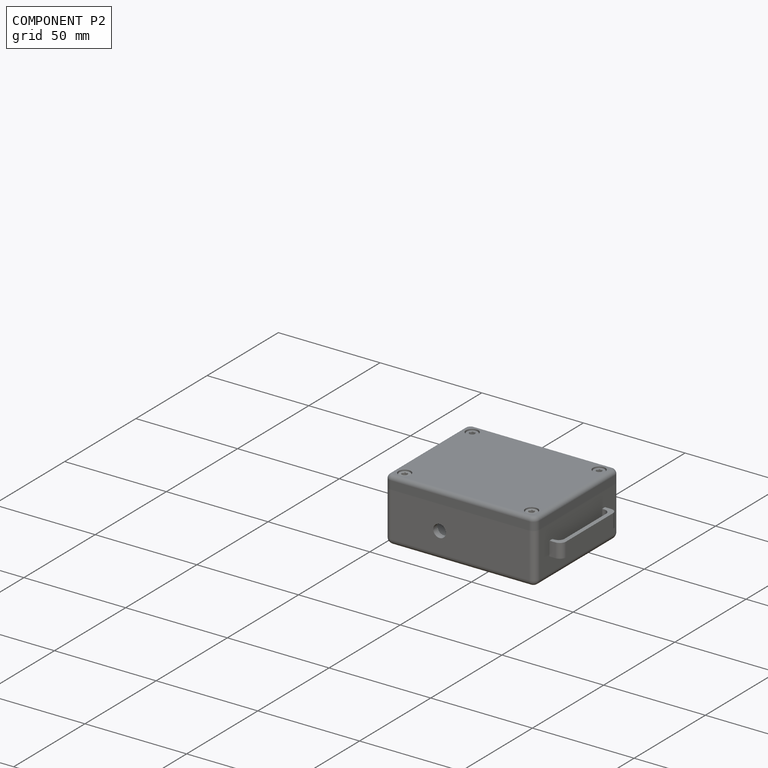
[diagram: component P2 — assembled]
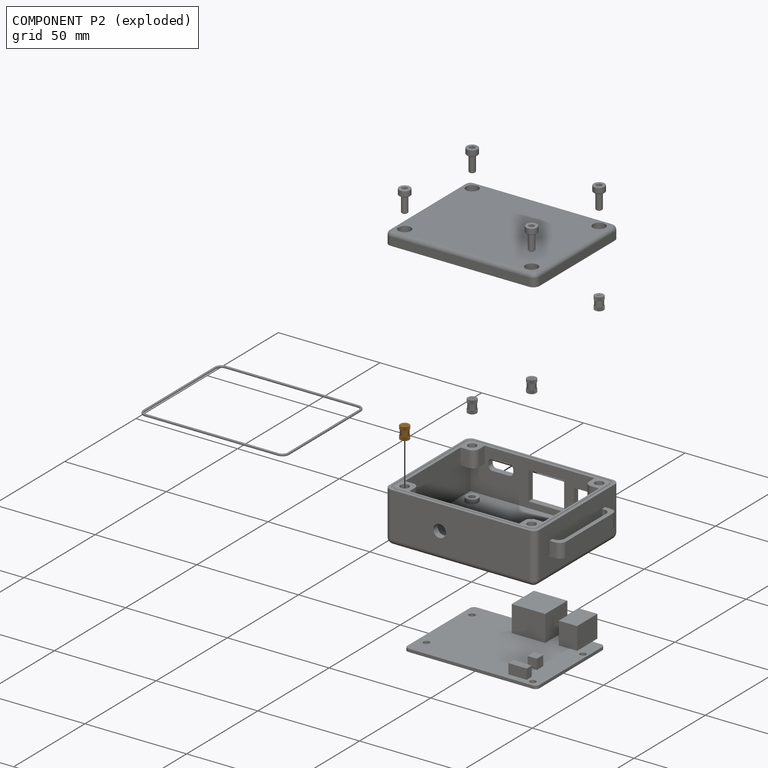
[diagram: component P2 — exploded]
COMPONENT P2 — geometry summary ("M3 insert nut004"; no construction recipe available for this part):
  bounding box: 6.2 x 4.5 x 4.5 mm
  tessellated surface: 14,620 triangles
  volume: 46 mm^3 (37% of its bounding box)
Held by: FASTENED mate "Joint005" to P8.
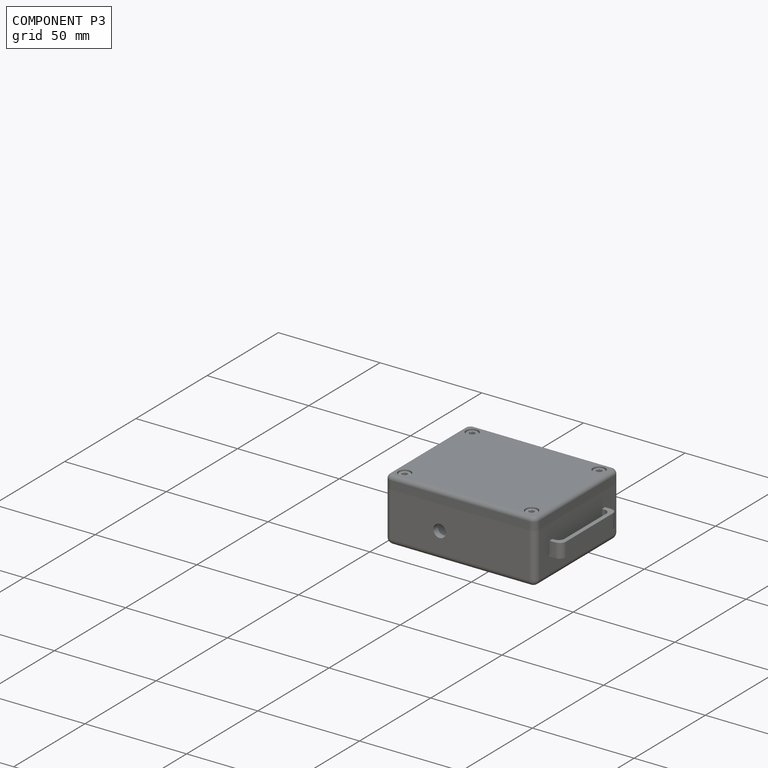
[diagram: component P3 — assembled]
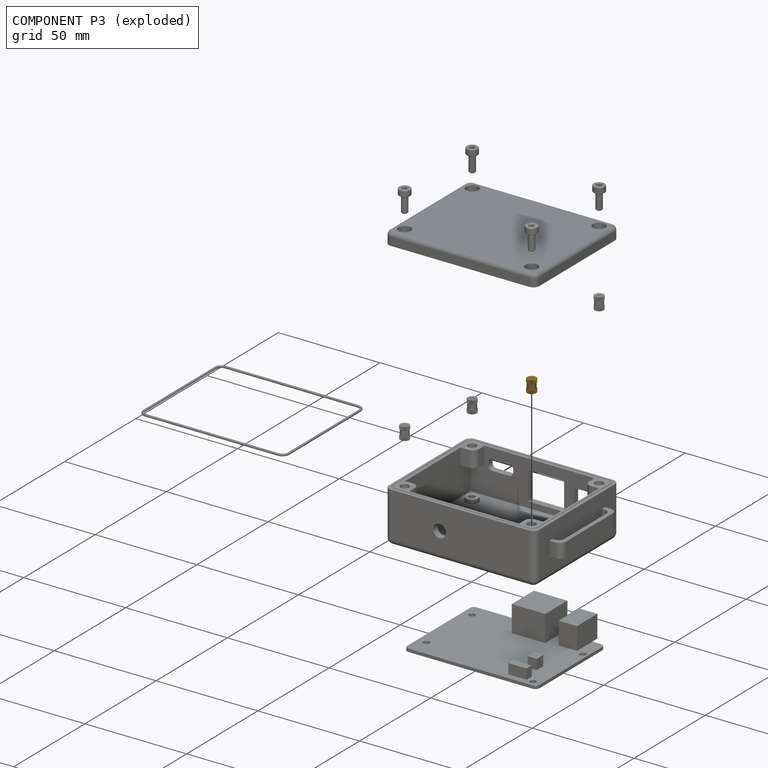
[diagram: component P3 — exploded]
COMPONENT P3 — geometry summary ("M3 insert nut005"; no construction recipe available for this part):
  bounding box: 6.2 x 4.5 x 4.5 mm
  tessellated surface: 14,620 triangles
  volume: 46 mm^3 (37% of its bounding box)
Held by: FASTENED mate "Joint004" to P8.
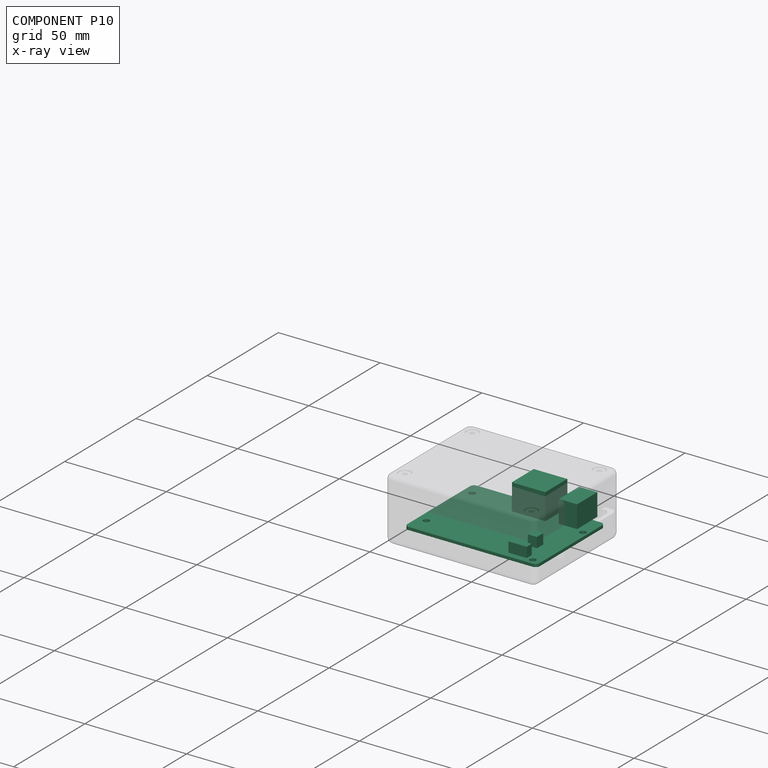
[diagram: component P10 — x-ray view]
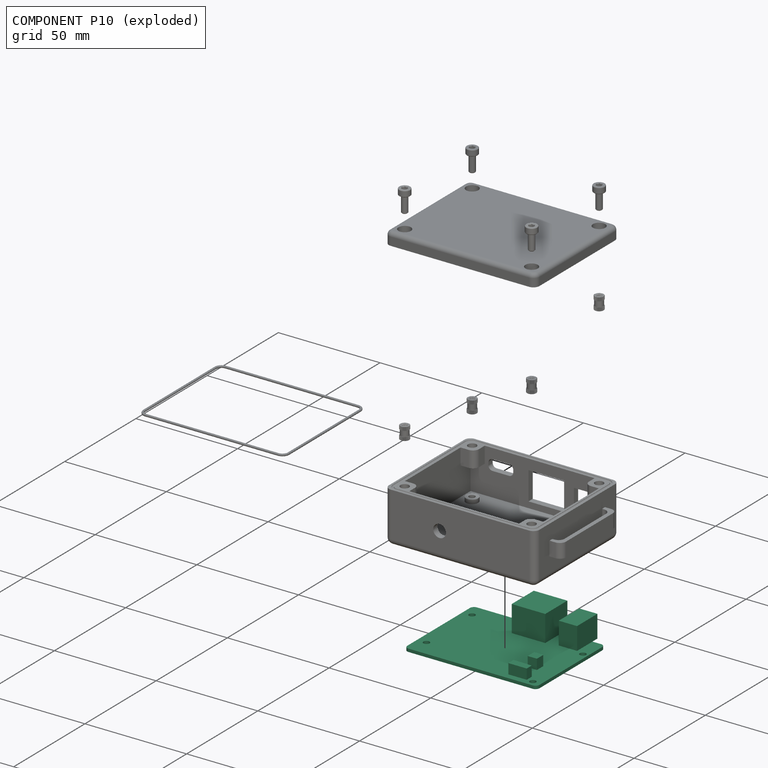
[diagram: component P10 — exploded]
COMPONENT P10 — recipe-attached ("netbridge_v2.002", modeled in this document).
Held by: FASTENED mate "Joint" to P8.
Construction recipe (the document's own serialized feature program — sketch geometry with constraints, then the solid features built on it; lengths are millimeters unless a unit is written):

FEATURE [Sketcher::SketchObject] Sketch
  ArcFitTolerance = 1e-06
  AttachmentSupport = -> [XY_Plane001]
  ExternalTypes = [0]
  FullyConstrained = true
  MakeInternals = false
  MapMode = 5
  sketch-geometry (15):
    g0: LineSegment StartX=-32.5 StartY=22 StartZ=0 EndX=-32.5 EndY=-22 EndZ=0
    g1: LineSegment StartX=-30.5 StartY=-24 StartZ=0 EndX=30.5 EndY=-24 EndZ=0
    g2: LineSegment StartX=32.5 StartY=-22 StartZ=0 EndX=32.5 EndY=22 EndZ=0
    g3: LineSegment StartX=30.5 StartY=24 StartZ=0 EndX=-30.5 EndY=24 EndZ=0
    g4: ArcOfCircle CenterX=-30.5 CenterY=22 CenterZ=0 NormalX=0 NormalY=0 NormalZ=1 AngleXU=0 Radius=2 StartAngle=1.5708 EndAngle=3.14159
    g5: ArcOfCircle CenterX=-30.5 CenterY=-22 CenterZ=0 NormalX=0 NormalY=0 NormalZ=1 AngleXU=0 Radius=2 StartAngle=3.14159 EndAngle=4.71239
    g6: ArcOfCircle CenterX=30.5 CenterY=-22 CenterZ=0 NormalX=0 NormalY=0 NormalZ=1 AngleXU=0 Radius=2 StartAngle=4.71239 EndAngle=6.28319
    g7: ArcOfCircle CenterX=30.5 CenterY=22 CenterZ=0 NormalX=0 NormalY=0 NormalZ=1 AngleXU=0 Radius=2 StartAngle=8e-16 EndAngle=1.5708
    g8: GeomPoint [constr] X=-32.5 Y=24 Z=0
    g9: GeomPoint [constr] X=32.5 Y=-24 Z=0
    g10: Circle CenterX=-28 CenterY=17 CenterZ=0 NormalX=0 NormalY=0 NormalZ=1 AngleXU=0 Radius=1.5
    g11: Circle CenterX=-28 CenterY=-15 CenterZ=0 NormalX=0 NormalY=0 NormalZ=1 AngleXU=0 Radius=1.5
    g12: Circle CenterX=28.5 CenterY=-21 CenterZ=0 NormalX=0 NormalY=0 NormalZ=1 AngleXU=0 Radius=1.5
    g13: Circle CenterX=30 CenterY=12 CenterZ=0 NormalX=0 NormalY=0 NormalZ=1 AngleXU=0 Radius=1.5
    g14: LineSegment [constr] StartX=-28 StartY=17 StartZ=0 EndX=-28 EndY=-15 EndZ=0
  constraints (37):
    c: Tangent(g0,g4) = -1.5708
    c: Tangent(g0,g5) = -1.5708
    c: Tangent(g1,g5) = -1.5708
    c: Tangent(g1,g6) = -1.5708
    c: Tangent(g2,g6) = -1.5708
    c: Tangent(g2,g7) = -1.5708
    c: Tangent(g3,g7) = -1.5708
    c: Tangent(g3,g4) = -1.5708
    c: Vertical(g0)
    c: Vertical(g2)
    c: Horizontal(g1)
    c: Horizontal(g3)
    c: Equal(g4,g5)
    c: Equal(g5,g6)
    c: Equal(g6,g7)
    c: PointOnObject(g8,g0)
    c: PointOnObject(g8,g3)
    c: PointOnObject(g9,g1)
    c: PointOnObject(g9,g2)
    c: DistanceX(g8,g9) = 65
    c: DistanceY(g9,g8) = 48
    c: Radius(g4) = 2
    c: Symmetric(g4,g6,g-1)
    c: Equal(g11,g12)
    c: Equal(g12,g13)
    c: Equal(g13,g10)
    c: Diameter(g10) = 3
    c: Coincident(g14,g10)
    c: Coincident(g14,g11)
    c: Perpendicular(g-1,g14)
    c: DistanceX(g8,g10) = 4.5
    c: DistanceY(g10,g8) = 7
    c: DistanceY(g1,g11) = 9
    c: DistanceX(g12,g9) = 4
    c: DistanceY(g9,g12) = 3
    c: DistanceY(g13,g3) = 12
    c: DistanceX(g13,g2) = 2.5
FEATURE [PartDesign::Pad] Pad  label="pcb"
  Direction = (0,0,1)
  Length = 1.5
  Length2 = 10
  Profile = -> Sketch
  ReferenceAxis = -> Sketch [N_Axis]
  Refine = true
  Suppressed = false
  Type = 0
FEATURE [Sketcher::SketchObject] Sketch001
  ArcFitTolerance = 1e-06
  AttachmentSupport = -> [Pad]
  ExternalGeometry = -> [Pad]
  ExternalTypes = [0]
  FullyConstrained = true
  MakeInternals = false
  MapMode = 5
  Placement = pos=(0,0,1.5) rot=(0,0,1;0rad)
  sketch-geometry (17):
    g0: LineSegment StartX=16.5 StartY=-17.5 StartZ=0 EndX=16.5 EndY=-21 EndZ=0
    g1: LineSegment StartX=16.5 StartY=-21 StartZ=0 EndX=25.5 EndY=-21 EndZ=0
    g2: LineSegment StartX=25.5 StartY=-21 StartZ=0 EndX=25.5 EndY=-17.5 EndZ=0
    g3: LineSegment StartX=25.5 StartY=-17.5 StartZ=0 EndX=16.5 EndY=-17.5 EndZ=0
    g4: LineSegment StartX=19 StartY=-6.5 StartZ=0 EndX=19 EndY=-11 EndZ=0
    g5: LineSegment StartX=19 StartY=-11 StartZ=0 EndX=23.5 EndY=-11 EndZ=0
    g6: LineSegment StartX=23.5 StartY=-11 StartZ=0 EndX=23.5 EndY=-6.5 EndZ=0
    g7: LineSegment StartX=23.5 StartY=-6.5 StartZ=0 EndX=19 EndY=-6.5 EndZ=0
    g8: LineSegment StartX=-5 StartY=27.5 StartZ=0 EndX=-5 EndY=12 EndZ=0
    g9: LineSegment StartX=-5 StartY=12 StartZ=0 EndX=11.5 EndY=12 EndZ=0
    g10: LineSegment StartX=11.5 StartY=12 StartZ=0 EndX=11.5 EndY=27.5 EndZ=0
    g11: LineSegment StartX=11.5 StartY=27.5 StartZ=0 EndX=-5 EndY=27.5 EndZ=0
    g12: LineSegment StartX=17.3 StartY=27.5 StartZ=0 EndX=17.3 EndY=13.2 EndZ=0
    g13: LineSegment StartX=17.3 StartY=13.2 StartZ=0 EndX=26.3 EndY=13.2 EndZ=0
    g14: LineSegment StartX=26.3 StartY=13.2 StartZ=0 EndX=26.3 EndY=27.5 EndZ=0
    g15: LineSegment StartX=26.3 StartY=27.5 StartZ=0 EndX=17.3 EndY=27.5 EndZ=0
    g16: LineSegment [constr] StartX=26.3 StartY=27.5 StartZ=0 EndX=-5 EndY=27.5 EndZ=0
  constraints (50):
    c: Coincident(g0,g1)
    c: Coincident(g1,g2)
    c: Coincident(g2,g3)
    c: Coincident(g3,g0)
    c: Vertical(g0)
    c: Vertical(g2)
    c: Horizontal(g1)
    c: Horizontal(g3)
    c: Coincident(g4,g5)
    c: Coincident(g5,g6)
    c: Coincident(g6,g7)
    c: Coincident(g7,g4)
    c: Vertical(g4)
    c: Vertical(g6)
    c: Horizontal(g5)
    c: Horizontal(g7)
    c: Coincident(g8,g9)
    c: Coincident(g9,g10)
    c: Coincident(g10,g11)
    c: Coincident(g11,g8)
    c: Vertical(g8)
    c: Vertical(g10)
    c: Horizontal(g9)
    c: Horizontal(g11)
    c: Coincident(g12,g13)
    c: Coincident(g13,g14)
    c: Coincident(g14,g15)
    c: Coincident(g15,g12)
    c: Vertical(g12)
    c: Vertical(g14)
    c: Horizontal(g13)
    c: Horizontal(g15)
    c: DistanceX(g0,g1) = 9
    c: Distance(g1,g2) = 3.5
    c: Distance(g4,g4) = 4.5
    c: Distance(g4,g5) = 4.5
    c: DistanceX(g8,g10) = 16.5
    c: DistanceX(g12,g14) = 9
    c: DistanceY(g8,g8) = 15.5
    c: DistanceY(g13,g14) = 14.3
    c: DistanceX(g14,g-3) = 6.2
    c: DistanceY(g-4,g14) = 3.5
    c: Coincident(g16,g14)
    c: Coincident(g16,g8)
    c: PointOnObject(g10,g16)
    c: DistanceX(g10,g-3) = 21
    c: Distance(g1,g-3) = 7
    c: DistanceY(g-5,g1) = 3
    c: DistanceX(g5,g-3) = 9
    c: DistanceY(g-5,g5) = 13
FEATURE [PartDesign::Pad] Pad001  label="switch"
  BaseFeature = -> Pad
  Direction = (0,0,1)
  Length = 5
  Length2 = 10
  Profile = -> Sketch001 [Edge4,Edge1,Edge2,Edge3,Edge6,Edge7,Edge8,Edge5]
  ReferenceAxis = -> Sketch001 [N_Axis]
  Refine = true
  Suppressed = false
  Type = 0
FEATURE [PartDesign::Pad] Pad002  label="barelJack"
  BaseFeature = -> Pad001
  Direction = (0,0,1)
  Length = 11
  Length2 = 10
  Profile = -> Sketch001 [Edge16,Edge15,Edge13,Edge14]
  ReferenceAxis = -> Sketch001 [N_Axis]
  Refine = true
  Suppressed = false
  Type = 0
FEATURE [PartDesign::Pad] Pad003  label="rj45"
  BaseFeature = -> Pad002
  Direction = (0,0,1)
  Length = 12.9
  Length2 = 10
  Profile = -> Sketch001 [Edge12,Edge11,Edge10,Edge9]
  ReferenceAxis = -> Sketch001 [N_Axis]
  Refine = true
  Suppressed = false
  Type = 0
FEATURE [PartDesign::Body] Body  label="mainPCB"
  AllowCompound = false
  Group = -> [Sketch,Pad,Sketch001,Pad001,Pad002,Pad003]
  Origin = -> Origin001
  Placement = pos=(0,0,-9.3e-15) rot=(0,1,0;0rad)
  Tip = -> Pad003
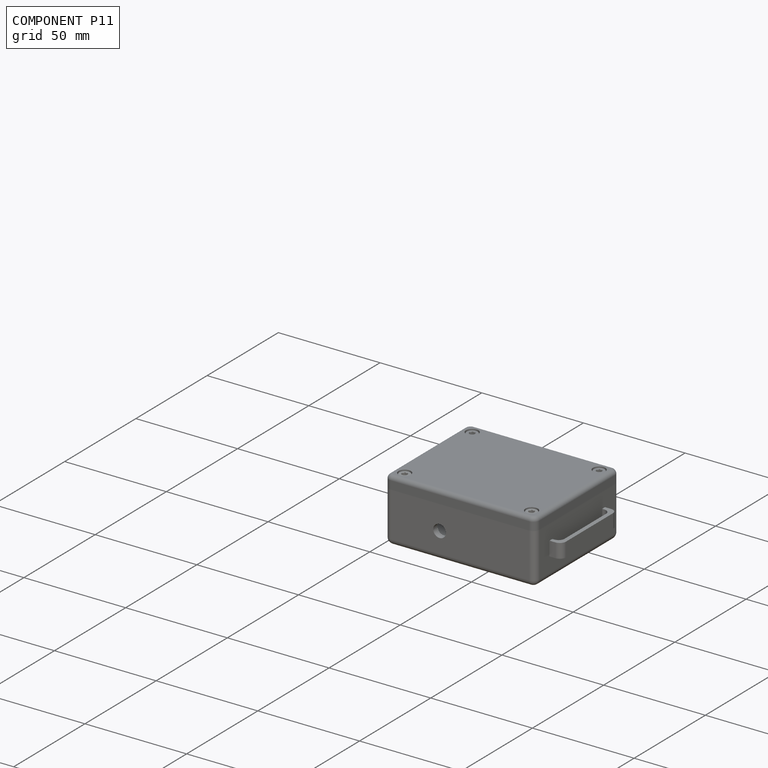
[diagram: component P11 — assembled]
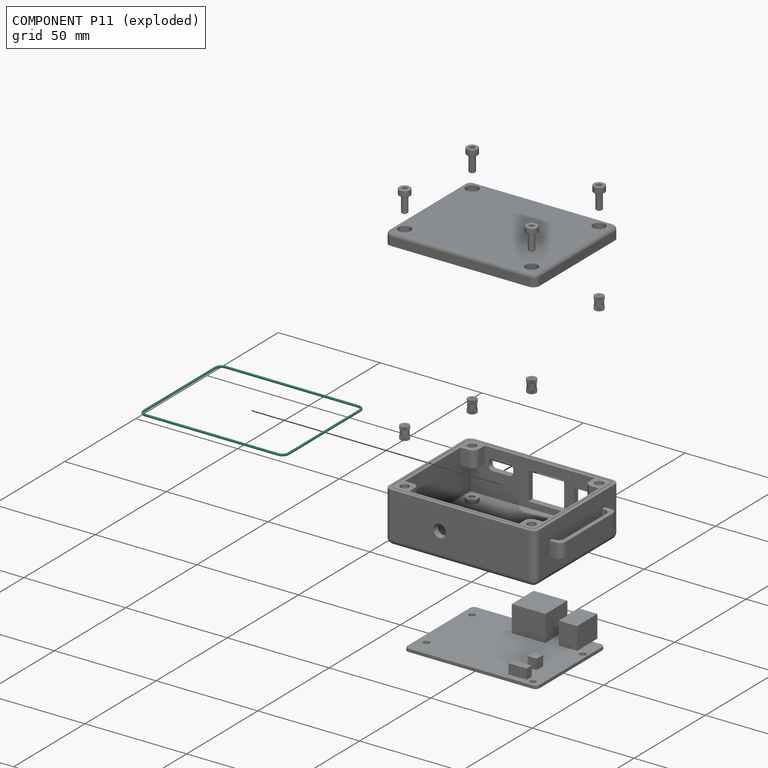
[diagram: component P11 — exploded]
COMPONENT P11 — recipe-attached ("oring001", modeled in this document).
Held by: FASTENED mate "Joint001" to P8.
Construction recipe (the document's own serialized feature program — sketch geometry with constraints, then the solid features built on it; lengths are millimeters unless a unit is written):

FEATURE [Sketcher::SketchObject] Sketch008
  ArcFitTolerance = 1e-06
  AttachmentSupport = -> [XY_Plane008]
  ExternalTypes = [0]
  FullyConstrained = true
  MakeInternals = false
  MapMode = 5
  expr: Constraints[19] = VarSet.Base_x + VarSet.Base_case_thickness
  expr: Constraints[20] = VarSet.Base_y + VarSet.Base_case_thickness
  expr: Constraints[21] = VarSet.Base_case_thickness
  sketch-geometry (10):
    g0: LineSegment StartX=-35.5 StartY=25 StartZ=0 EndX=-35.5 EndY=-25 EndZ=0
    g1: LineSegment StartX=-32.5 StartY=-28 StartZ=0 EndX=32.5 EndY=-28 EndZ=0
    g2: LineSegment StartX=35.5 StartY=-25 StartZ=0 EndX=35.5 EndY=25 EndZ=0
    g3: LineSegment StartX=32.5 StartY=28 StartZ=0 EndX=-32.5 EndY=28 EndZ=0
    g4: ArcOfCircle CenterX=-32.5 CenterY=25 CenterZ=0 NormalX=0 NormalY=0 NormalZ=1 AngleXU=0 Radius=3 StartAngle=1.5708 EndAngle=3.14159
    g5: ArcOfCircle CenterX=-32.5 CenterY=-25 CenterZ=0 NormalX=0 NormalY=0 NormalZ=1 AngleXU=0 Radius=3 StartAngle=3.14159 EndAngle=4.71239
    g6: ArcOfCircle CenterX=32.5 CenterY=-25 CenterZ=0 NormalX=0 NormalY=0 NormalZ=1 AngleXU=0 Radius=3 StartAngle=4.71239 EndAngle=6.28319
    g7: ArcOfCircle CenterX=32.5 CenterY=25 CenterZ=0 NormalX=0 NormalY=0 NormalZ=1 AngleXU=0 Radius=3 StartAngle=0 EndAngle=1.5708
    g8: GeomPoint [constr] X=-35.5 Y=28 Z=0
    g9: GeomPoint [constr] X=35.5 Y=-28 Z=0
  constraints (23):
    c: Tangent(g0,g4) = -1.5708
    c: Tangent(g0,g5) = -1.5708
    c: Tangent(g1,g5) = -1.5708
    c: Tangent(g1,g6) = -1.5708
    c: Tangent(g2,g6) = -1.5708
    c: Tangent(g2,g7) = -1.5708
    c: Tangent(g3,g7) = -1.5708
    c: Tangent(g3,g4) = -1.5708
    c: Vertical(g0)
    c: Vertical(g2)
    c: Horizontal(g1)
    c: Horizontal(g3)
    c: Equal(g4,g5)
    c: Equal(g5,g6)
    c: Equal(g6,g7)
    c: PointOnObject(g8,g0)
    c: PointOnObject(g8,g3)
    c: PointOnObject(g9,g1)
    c: PointOnObject(g9,g2)
    c: Distance(g0,g2) = 71
    c: Distance(g1,g3) = 56
    c: Radius(g4) = 3
    c: Symmetric(g4,g6,g-1)
FEATURE [Sketcher::SketchObject] Sketch009
  ArcFitTolerance = 1e-06
  AttachmentSupport = -> [XZ_Plane008]
  ExternalTypes = [0]
  FullyConstrained = true
  MakeInternals = false
  MapMode = 5
  Placement = pos=(0,0,0) rot=(1,0,0;1.5708rad)
  expr: Constraints[1] = VarSet.Base_o_ring_diameter * 1.1
  expr: Constraints[2] = (VarSet.Base_x + VarSet.Base_case_thickness) / 2
  sketch-geometry (1):
    g0: Circle CenterX=35.5 CenterY=0 CenterZ=0 NormalX=0 NormalY=0 NormalZ=1 AngleXU=0 Radius=0.55
  constraints (3):
    c: PointOnObject(g0,g-1)
    c: Diameter(g0) = 1.1
    c: DistanceX(g-1,g0) = 35.5
FEATURE [PartDesign::AdditivePipe] AdditivePipe
  AuxilleryCurvelinear = true
  AuxillerySpineTangent = false
  Binormal = (0,0,0)
  Mode = 0
  Placement = pos=(0,0,0) rot=(1,0,0;1.5708rad)
  Profile = -> Sketch009
  Refine = true
  Spine = -> Sketch008
  SpineTangent = false
  Suppressed = false
  Transformation = 0
  Transition = 0
FEATURE [PartDesign::Body] Body003  label="Body"
  AllowCompound = false
  Group = -> [Sketch008,Sketch009,AdditivePipe]
  Origin = -> Origin016
  Tip = -> AdditivePipe
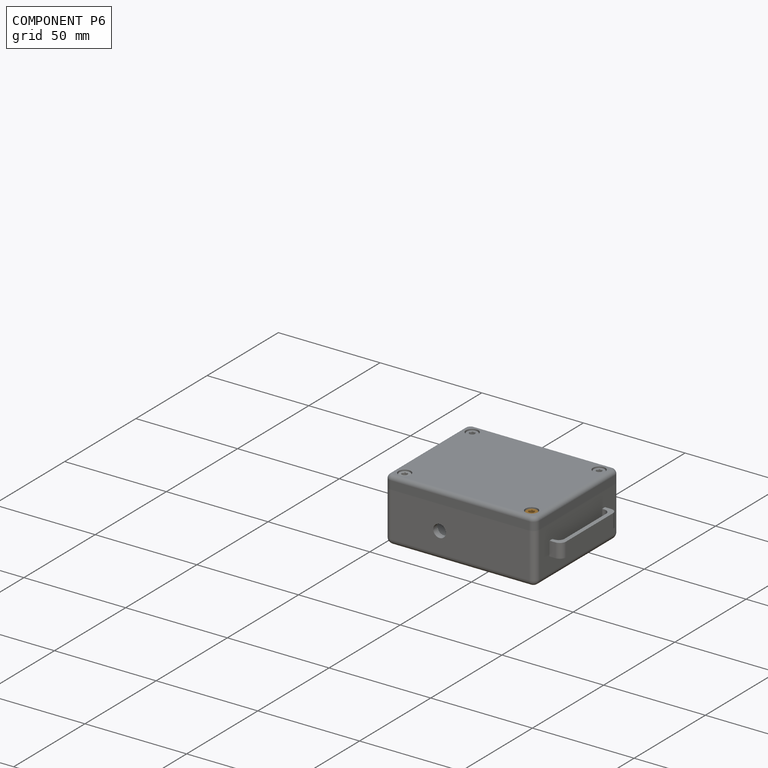
[diagram: component P6 — assembled]
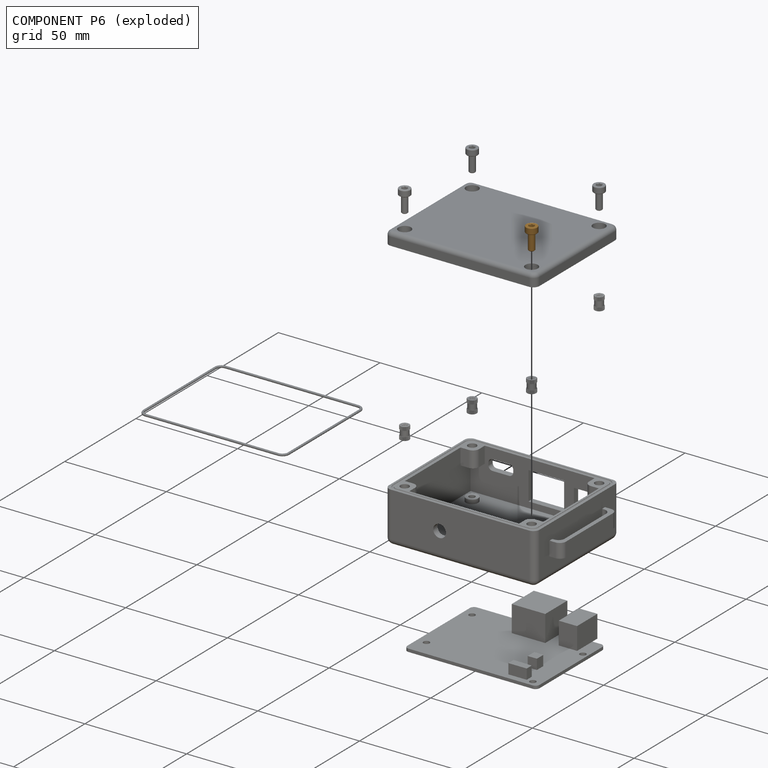
[diagram: component P6 — exploded]
COMPONENT P6 — geometry summary ("M3x8-Screw003"; no construction recipe available for this part):
  bounding box: 11.0 x 5.5 x 5.5 mm
  tessellated surface: 8,124 triangles
  volume: 117 mm^3 (35% of its bounding box)
  symmetry: 6-fold rotationally symmetric about the z axis; mirror-symmetric across its x mid-plane, y mid-plane
Held by: FASTENED mate "Joint009" to P9.
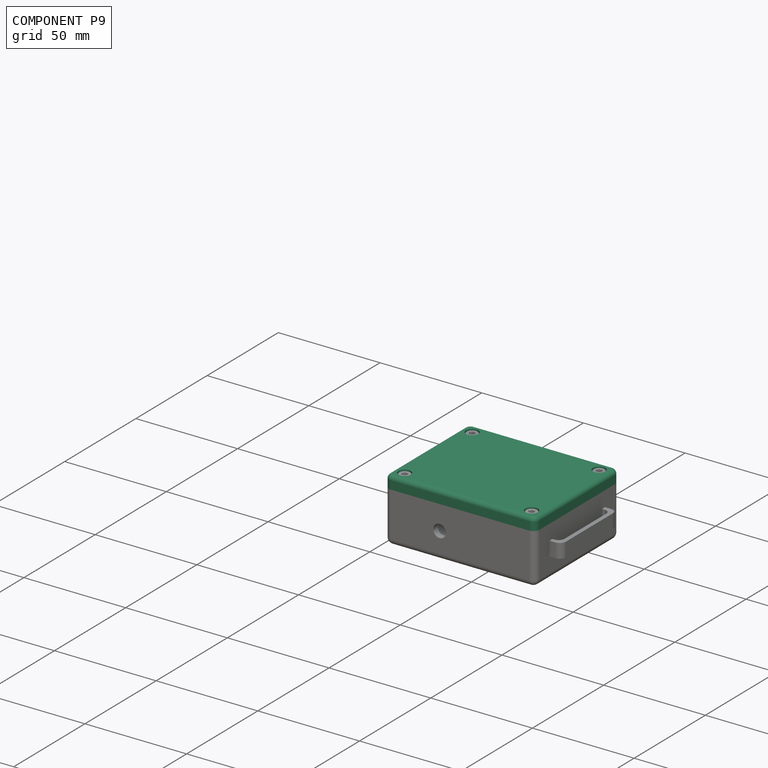
[diagram: component P9 — assembled]
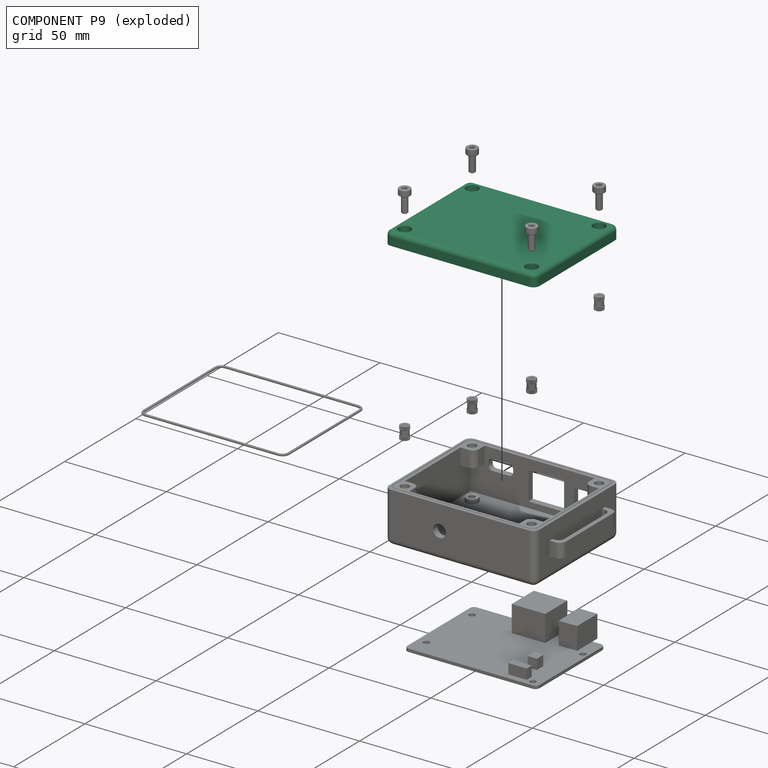
[diagram: component P9 — exploded]
COMPONENT P9 — recipe-attached ("case_cover001", modeled in this document).
Held by: FASTENED mate "Joint002" to P8; FASTENED mate "Joint007" to P4; FASTENED mate "Joint008" to P5; FASTENED mate "Joint009" to P6; FASTENED mate "Joint010" to P7.
Construction recipe (the document's own serialized feature program — sketch geometry with constraints, then the solid features built on it; lengths are millimeters unless a unit is written):

FEATURE [Sketcher::SketchObject] Sketch013
  ArcFitTolerance = 1e-06
  AttachmentSupport = -> [XY_Plane004]
  ExternalTypes = [0]
  FullyConstrained = true
  MakeInternals = false
  MapMode = 5
  expr: Constraints[19] = VarSet.Base_x + VarSet.Base_case_thickness
  expr: Constraints[20] = VarSet.Base_y + VarSet.Base_case_thickness
  expr: Constraints[21] = VarSet.Base_case_thickness
  sketch-geometry (10):
    g0: LineSegment StartX=-35.5 StartY=25 StartZ=0 EndX=-35.5 EndY=-25 EndZ=0
    g1: LineSegment StartX=-32.5 StartY=-28 StartZ=0 EndX=32.5 EndY=-28 EndZ=0
    g2: LineSegment StartX=35.5 StartY=-25 StartZ=0 EndX=35.5 EndY=25 EndZ=0
    g3: LineSegment StartX=32.5 StartY=28 StartZ=0 EndX=-32.5 EndY=28 EndZ=0
    g4: ArcOfCircle CenterX=-32.5 CenterY=25 CenterZ=0 NormalX=0 NormalY=0 NormalZ=1 AngleXU=0 Radius=3 StartAngle=1.5708 EndAngle=3.14159
    g5: ArcOfCircle CenterX=-32.5 CenterY=-25 CenterZ=0 NormalX=0 NormalY=0 NormalZ=1 AngleXU=0 Radius=3 StartAngle=3.14159 EndAngle=4.71239
    g6: ArcOfCircle CenterX=32.5 CenterY=-25 CenterZ=0 NormalX=0 NormalY=0 NormalZ=1 AngleXU=0 Radius=3 StartAngle=4.71239 EndAngle=6.28319
    g7: ArcOfCircle CenterX=32.5 CenterY=25 CenterZ=0 NormalX=0 NormalY=0 NormalZ=1 AngleXU=0 Radius=3 StartAngle=0 EndAngle=1.5708
    g8: GeomPoint [constr] X=-35.5 Y=28 Z=0
    g9: GeomPoint [constr] X=35.5 Y=-28 Z=0
  constraints (23):
    c: Tangent(g0,g4) = -1.5708
    c: Tangent(g0,g5) = -1.5708
    c: Tangent(g1,g5) = -1.5708
    c: Tangent(g1,g6) = -1.5708
    c: Tangent(g2,g6) = -1.5708
    c: Tangent(g2,g7) = -1.5708
    c: Tangent(g3,g7) = -1.5708
    c: Tangent(g3,g4) = -1.5708
    c: Vertical(g0)
    c: Vertical(g2)
    c: Horizontal(g1)
    c: Horizontal(g3)
    c: Equal(g4,g5)
    c: Equal(g5,g6)
    c: Equal(g6,g7)
    c: PointOnObject(g8,g0)
    c: PointOnObject(g8,g3)
    c: PointOnObject(g9,g1)
    c: PointOnObject(g9,g2)
    c: Distance(g0,g2) = 71
    c: Distance(g1,g3) = 56
    c: Radius(g4) = 3
    c: Symmetric(g4,g6,g-1)
FEATURE [Sketcher::SketchObject] Sketch014
  ArcFitTolerance = 1e-06
  AttachmentSupport = -> [XY_Plane004]
  ExternalTypes = [0]
  FullyConstrained = true
  MakeInternals = false
  MapMode = 5
  expr: Constraints[19] = VarSet.Base_x + 2 * VarSet.Base_case_thickness
  expr: Constraints[20] = VarSet.Base_y + 2 * VarSet.Base_case_thickness
  expr: Constraints[21] = VarSet.Base_case_thickness
  sketch-geometry (10):
    g0: LineSegment StartX=-37 StartY=26.5 StartZ=0 EndX=-37 EndY=-26.5 EndZ=0
    g1: LineSegment StartX=-34 StartY=-29.5 StartZ=0 EndX=34 EndY=-29.5 EndZ=0
    g2: LineSegment StartX=37 StartY=-26.5 StartZ=0 EndX=37 EndY=26.5 EndZ=0
    g3: LineSegment StartX=34 StartY=29.5 StartZ=0 EndX=-34 EndY=29.5 EndZ=0
    g4: ArcOfCircle CenterX=-34 CenterY=26.5 CenterZ=0 NormalX=0 NormalY=0 NormalZ=1 AngleXU=0 Radius=3 StartAngle=1.5708 EndAngle=3.14159
    g5: ArcOfCircle CenterX=-34 CenterY=-26.5 CenterZ=0 NormalX=0 NormalY=0 NormalZ=1 AngleXU=0 Radius=3 StartAngle=3.14159 EndAngle=4.71239
    g6: ArcOfCircle CenterX=34 CenterY=-26.5 CenterZ=0 NormalX=0 NormalY=0 NormalZ=1 AngleXU=0 Radius=3 StartAngle=4.71239 EndAngle=6.28319
    g7: ArcOfCircle CenterX=34 CenterY=26.5 CenterZ=0 NormalX=0 NormalY=0 NormalZ=1 AngleXU=0 Radius=3 StartAngle=1.768e-13 EndAngle=1.5708
    g8: GeomPoint [constr] X=-37 Y=29.5 Z=0
    g9: GeomPoint [constr] X=37 Y=-29.5 Z=0
  constraints (23):
    c: Tangent(g0,g4) = -1.5708
    c: Tangent(g0,g5) = -1.5708
    c: Tangent(g1,g5) = -1.5708
    c: Tangent(g1,g6) = -1.5708
    c: Tangent(g2,g6) = -1.5708
    c: Tangent(g2,g7) = -1.5708
    c: Tangent(g3,g7) = -1.5708
    c: Tangent(g3,g4) = -1.5708
    c: Vertical(g0)
    c: Vertical(g2)
    c: Horizontal(g1)
    c: Horizontal(g3)
    c: Equal(g4,g5)
    c: Equal(g5,g6)
    c: Equal(g6,g7)
    c: PointOnObject(g8,g0)
    c: PointOnObject(g8,g3)
    c: PointOnObject(g9,g1)
    c: PointOnObject(g9,g2)
    c: Distance(g0,g2) = 74
    c: Distance(g1,g3) = 59
    c: Radius(g4) = 3
    c: Symmetric(g4,g6,g-1)
FEATURE [PartDesign::Pad] Pad008
  Direction = (0,0,1)
  Length = 6
  Length2 = 10
  Profile = -> Sketch014
  ReferenceAxis = -> Sketch014 [N_Axis]
  Refine = true
  Suppressed = false
  Type = 0
  expr: Length = VarSet.Base_cover_thickness
FEATURE [Part::DatumPlane] Plane001
  AttachmentOffset = pos=(0,0,6) rot=(0,0,1;0rad)
  AttachmentSupport = -> [Origin004]
  MapMode = 5
  Placement = pos=(0,0,6) rot=(0,0,1;0rad)
  expr: .AttachmentOffset.Base.z = VarSet.Base_cover_thickness
FEATURE [Sketcher::SketchObject] Sketch015
  ArcFitTolerance = 1e-06
  AttachmentSupport = -> [Plane001]
  ExternalTypes = [0]
  FullyConstrained = true
  MakeInternals = false
  MapMode = 5
  Placement = pos=(0,0,6) rot=(0,0,1;0rad)
  expr: Constraints[10] = VarSet.Base_y - VarSet.Base_screw_pad * 0.8
  expr: Constraints[9] = VarSet.Base_x - VarSet.Base_screw_pad * 0.8
  sketch-geometry (9):
    g0: LineSegment [constr] StartX=-31.2 StartY=-23.7 StartZ=0 EndX=31.2 EndY=-23.7 EndZ=0
    g1: LineSegment [constr] StartX=31.2 StartY=-23.7 StartZ=0 EndX=31.2 EndY=23.7 EndZ=0
    g2: LineSegment [constr] StartX=31.2 StartY=23.7 StartZ=0 EndX=-31.2 EndY=23.7 EndZ=0
    g3: LineSegment [constr] StartX=-31.2 StartY=23.7 StartZ=0 EndX=-31.2 EndY=-23.7 EndZ=0
    g4: GeomPoint [constr] X=0 Y=0 Z=0
    g5: Circle CenterX=-31.2 CenterY=23.7 CenterZ=0 NormalX=0 NormalY=0 NormalZ=1 AngleXU=0 Radius=2.1
    g6: Circle CenterX=31.2 CenterY=23.7 CenterZ=0 NormalX=0 NormalY=0 NormalZ=1 AngleXU=0 Radius=2.1
    g7: Circle CenterX=31.2 CenterY=-23.7 CenterZ=0 NormalX=0 NormalY=0 NormalZ=1 AngleXU=0 Radius=2.1
    g8: Circle CenterX=-31.2 CenterY=-23.7 CenterZ=0 NormalX=0 NormalY=0 NormalZ=1 AngleXU=0 Radius=2.1
  constraints (20):
    c: Coincident(g0,g1)
    c: Coincident(g1,g2)
    c: Coincident(g2,g3)
    c: Coincident(g3,g0)
    c: Horizontal(g0)
    c: Horizontal(g2)
    c: Vertical(g1)
    c: Vertical(g3)
    c: Symmetric(g2,g0,g4)
    c: Distance(g1,g3) = 62.4
    c: Distance(g0,g2) = 47.4
    c: Coincident(g4,g-1)
    c: Coincident(g5,g2)
    c: Coincident(g6,g1)
    c: Coincident(g7,g0)
    c: Coincident(g8,g0)
    c: Equal(g8,g7)
    c: Equal(g7,g6)
    c: Equal(g6,g5)
    c: Diameter(g5) = 4.2
FEATURE [Sketcher::SketchObject] Sketch016
  ArcFitTolerance = 1e-06
  AttachmentSupport = -> [XZ_Plane004]
  ExternalTypes = [0]
  FullyConstrained = true
  MakeInternals = false
  MapMode = 5
  Placement = pos=(0,0,0) rot=(1,0,0;1.5708rad)
  expr: Constraints[1] = VarSet.Base_o_ring_diameter
  expr: Constraints[2] = (VarSet.Base_x + VarSet.Base_case_thickness) / 2
  sketch-geometry (1):
    g0: Circle CenterX=-35.5 CenterY=0 CenterZ=0 NormalX=0 NormalY=0 NormalZ=1 AngleXU=0 Radius=0.5
  constraints (3):
    c: PointOnObject(g0,g-1)
    c: Diameter(g0) = 1
    c: DistanceX(g0,g-1) = 35.5
FEATURE [PartDesign::AdditivePipe] AdditivePipe001
  AuxilleryCurvelinear = true
  AuxillerySpineTangent = false
  BaseFeature = -> Pad008
  Binormal = (0,0,0)
  Mode = 0
  Profile = -> Sketch016
  Refine = true
  Spine = -> Sketch013
  SpineTangent = false
  Suppressed = false
  Transformation = 0
  Transition = 0
FEATURE [PartDesign::Hole] Hole
  BaseFeature = -> AdditivePipe001
  CustomThreadClearance = 0
  Depth = 25
  DepthType = 0
  Diameter = 3.4
  DrillForDepth = false
  DrillPoint = 1
  DrillPointAngle = 118
  HoleCutCountersinkAngle = 90
  HoleCutCustomValues = false
  HoleCutDepth = 3.4
  HoleCutDiameter = 6.1
  HoleCutType = 1
  ModelThread = false
  Profile = -> Sketch015
  Refine = true
  Suppressed = false
  Tapered = false
  TaperedAngle = 90
  ThreadClass = 0
  ThreadDepth = 25
  ThreadDepthType = 0
  ThreadDirection = 0
  ThreadFit = 0
  ThreadSize = 9
  ThreadType = 1
  Threaded = false
  UseCustomThreadClearance = false
FEATURE [PartDesign::Fillet] Fillet
  Base = -> Hole [Edge28,Edge27,Edge25,Edge10,Edge4,Edge7,Edge24,Edge26]
  BaseFeature = -> Hole
  Radius = 2
  Refine = true
  SupportTransform = false
  Suppressed = false
  UseAllEdges = false
FEATURE [PartDesign::Body] Body002  label="cover"
  AllowCompound = false
  Group = -> [Sketch013,Sketch014,Pad008,Sketch015,Plane001,Sketch016,AdditivePipe001,Hole,Fillet]
  Origin = -> Origin004
  Tip = -> Fillet
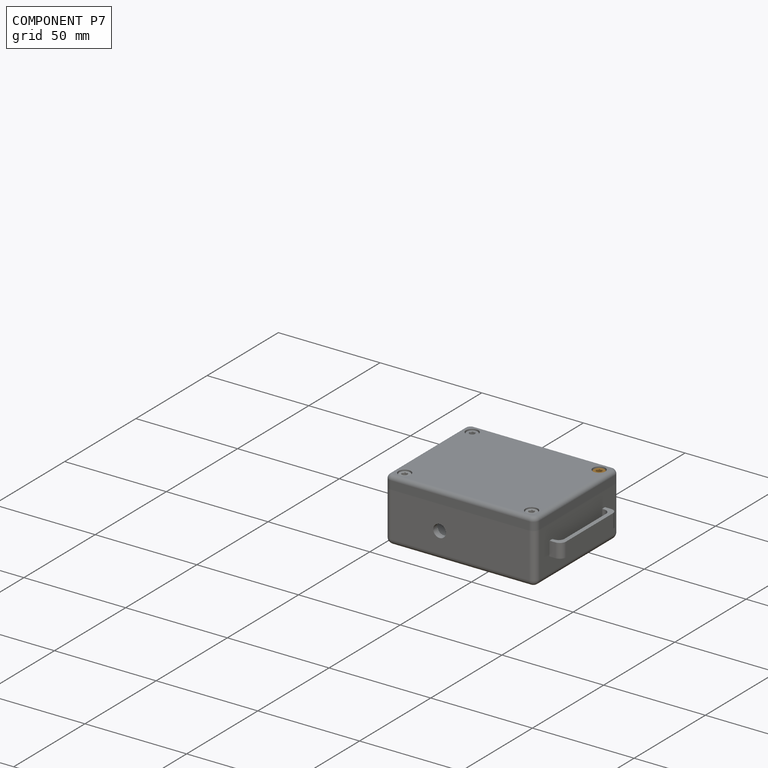
[diagram: component P7 — assembled]
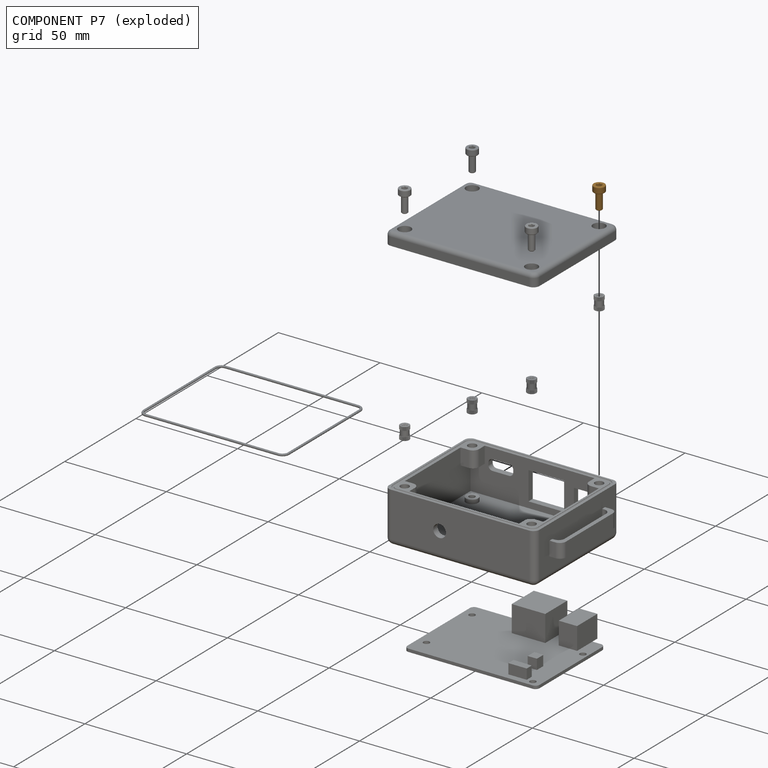
[diagram: component P7 — exploded]
COMPONENT P7 — geometry summary ("M3x8-Screw004"; no construction recipe available for this part):
  bounding box: 11.0 x 5.5 x 5.5 mm
  tessellated surface: 8,124 triangles
  volume: 117 mm^3 (35% of its bounding box)
  symmetry: 6-fold rotationally symmetric about the z axis; mirror-symmetric across its x mid-plane, y mid-plane
Held by: FASTENED mate "Joint010" to P9.
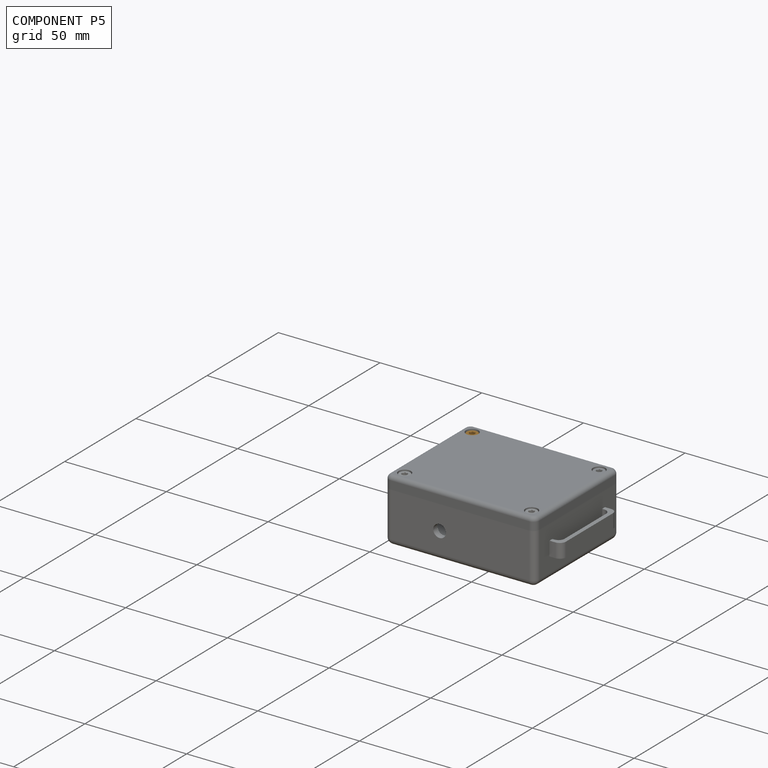
[diagram: component P5 — assembled]
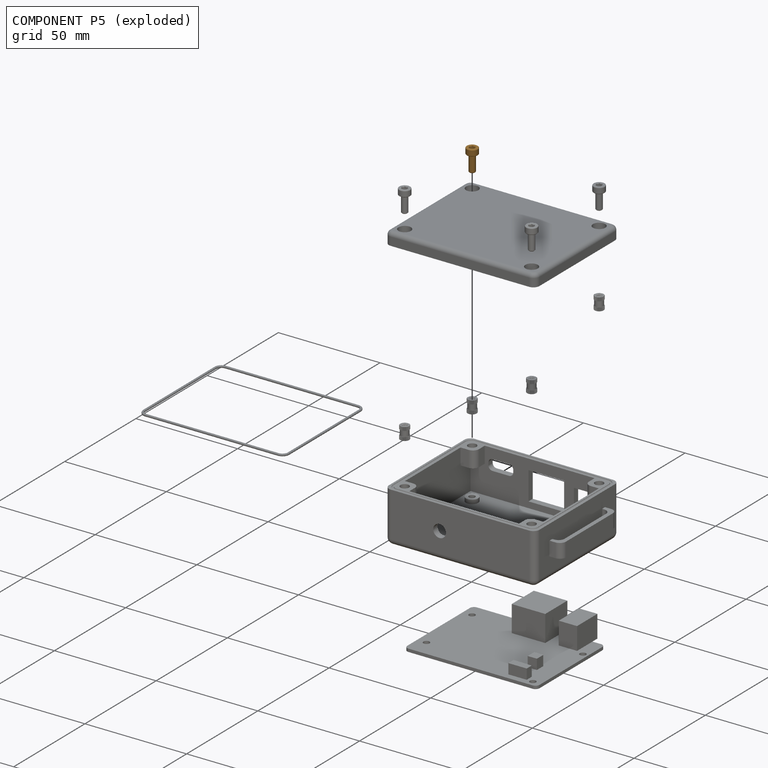
[diagram: component P5 — exploded]
COMPONENT P5 — geometry summary ("M3x8-Screw002"; no construction recipe available for this part):
  bounding box: 11.0 x 5.5 x 5.5 mm
  tessellated surface: 8,124 triangles
  volume: 117 mm^3 (35% of its bounding box)
  symmetry: 6-fold rotationally symmetric about the z axis; mirror-symmetric across its x mid-plane, y mid-plane
Held by: FASTENED mate "Joint008" to P9.
